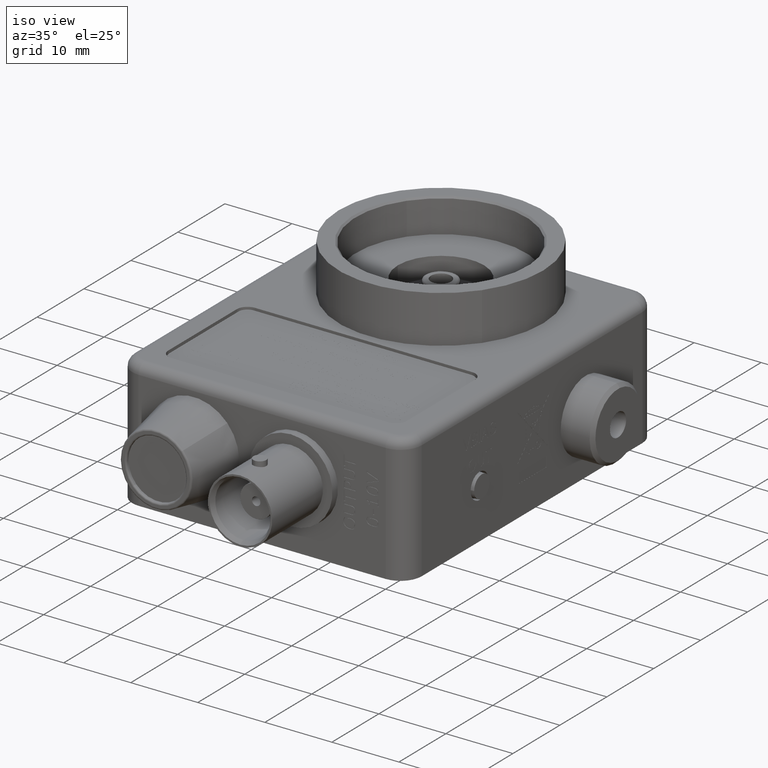
[diagram: clean part render]
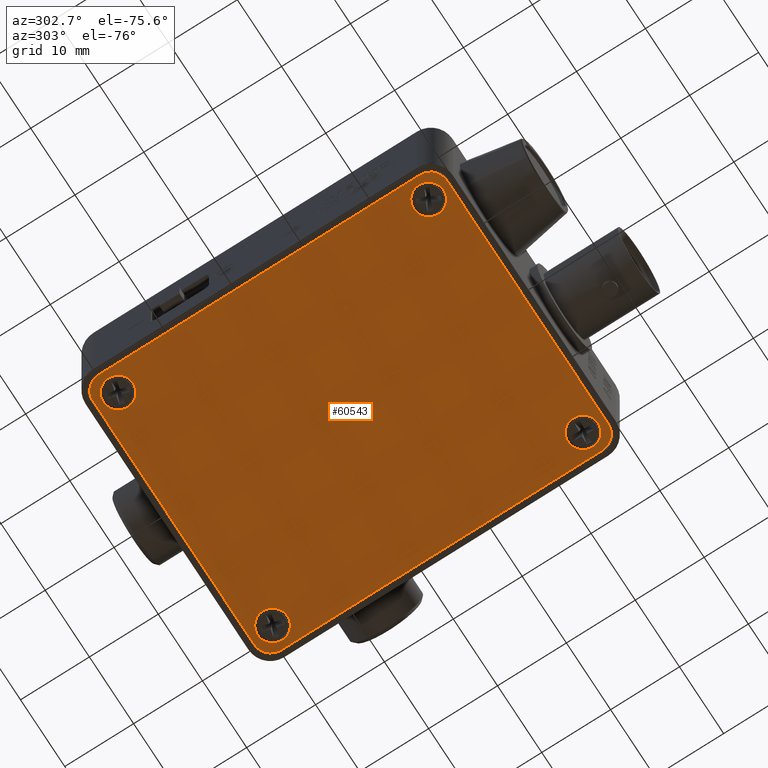
[diagram: tour spotlight — one face highlighted and labeled with its STEP entity id]
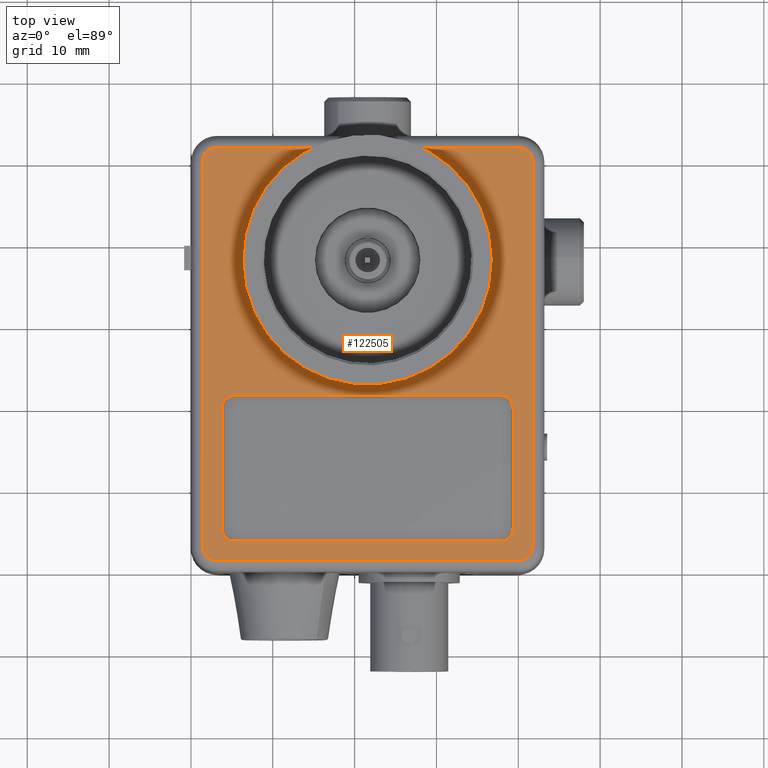
[diagram: tour spotlight — one face highlighted and labeled with its STEP entity id]
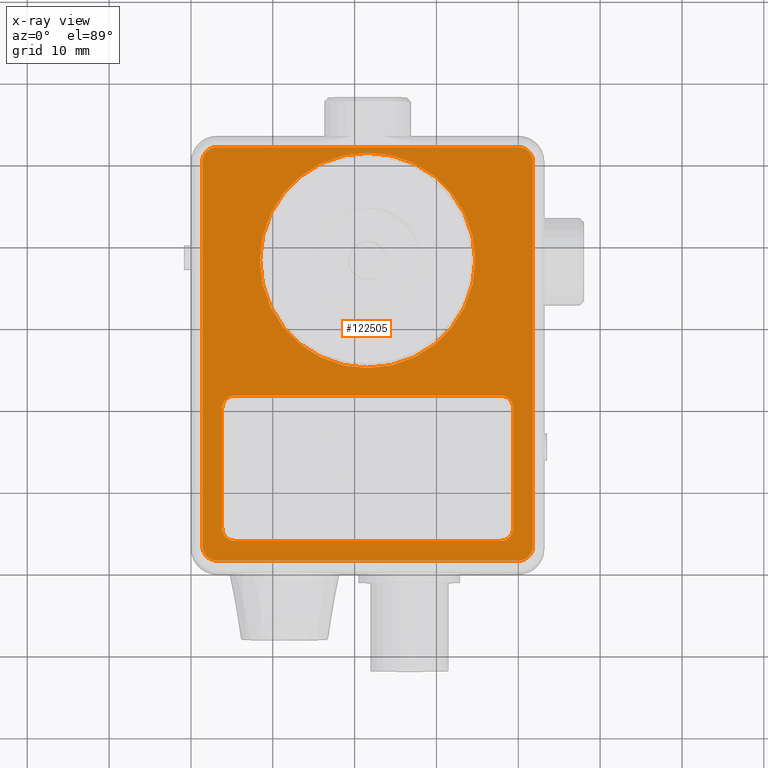
[diagram: x-ray of the same camera — body ghosted, this tour face saturated]
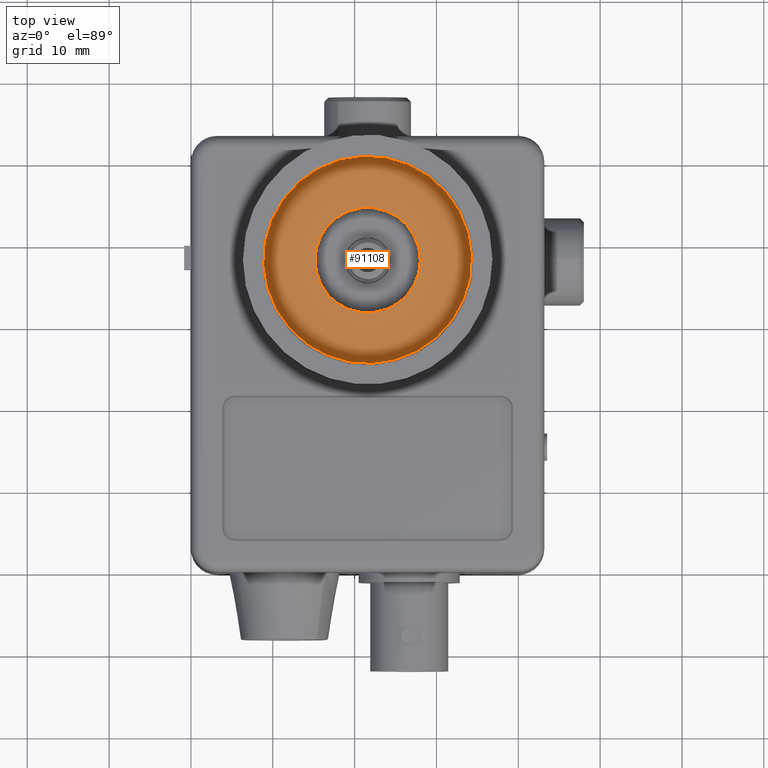
[diagram: tour spotlight — one face highlighted and labeled with its STEP entity id]
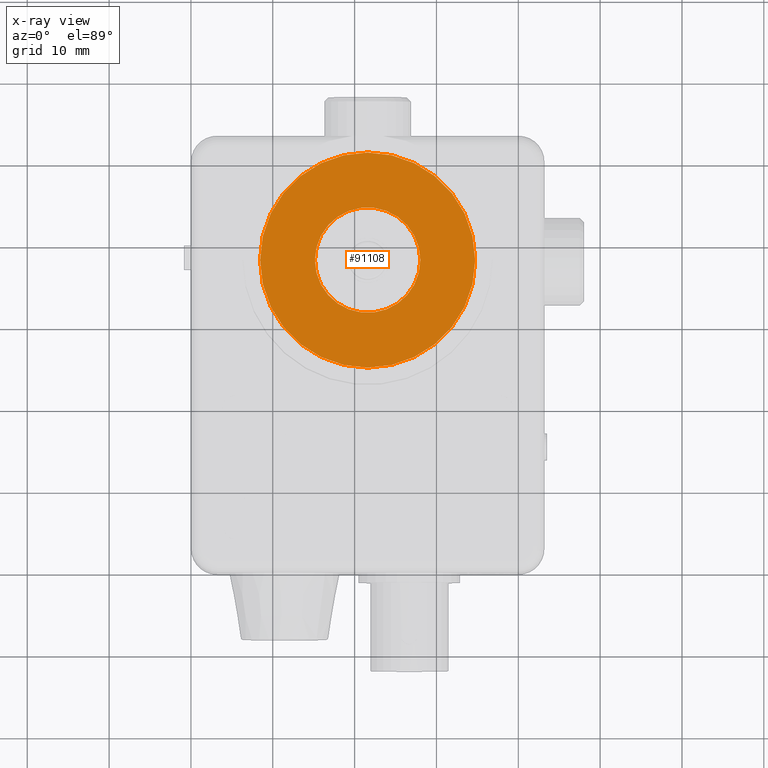
[diagram: x-ray of the same camera — body ghosted, this tour face saturated]
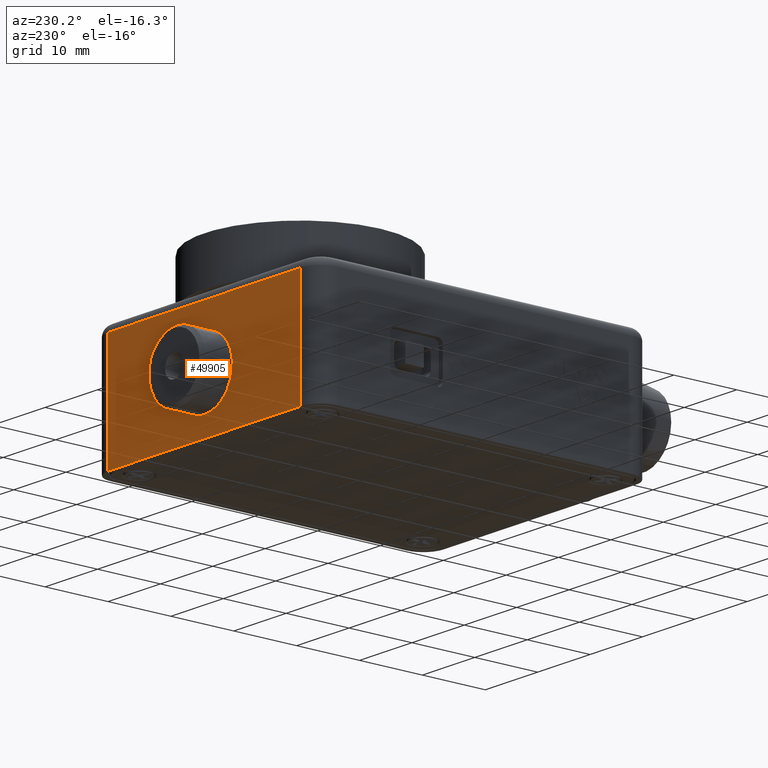
[diagram: tour spotlight — one face highlighted and labeled with its STEP entity id]
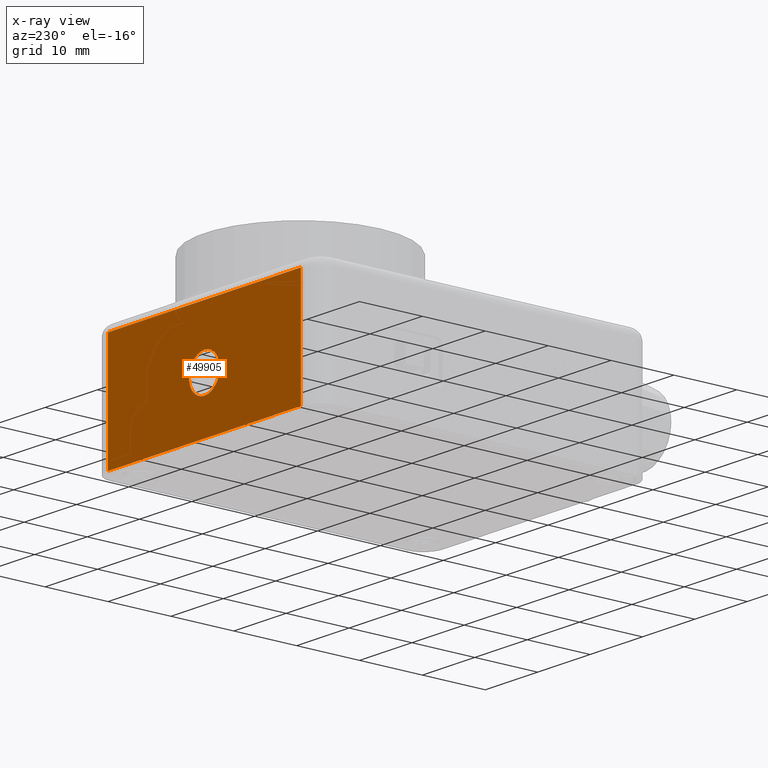
[diagram: x-ray of the same camera — body ghosted, this tour face saturated]
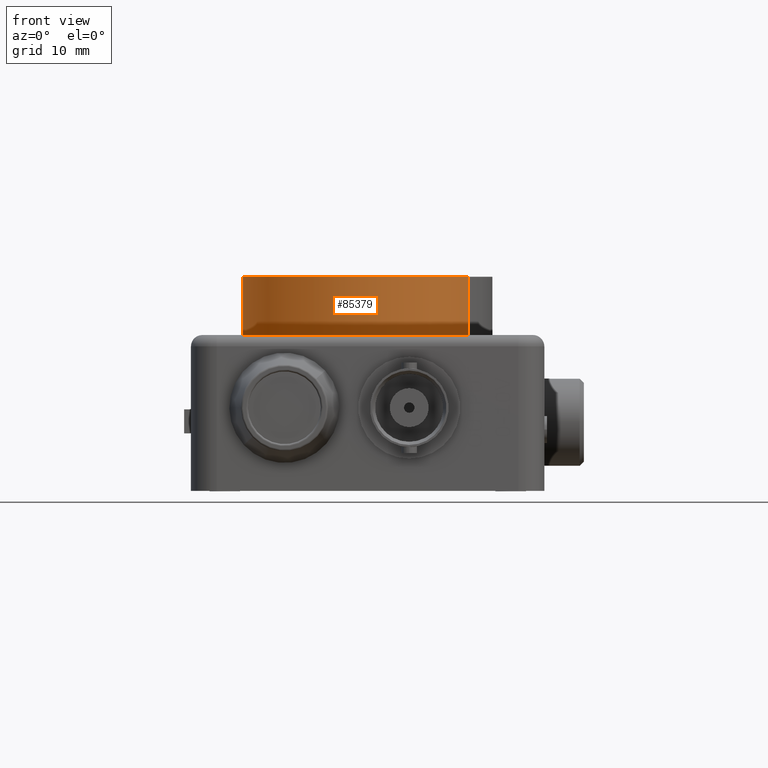
[diagram: tour spotlight — one face highlighted and labeled with its STEP entity id]
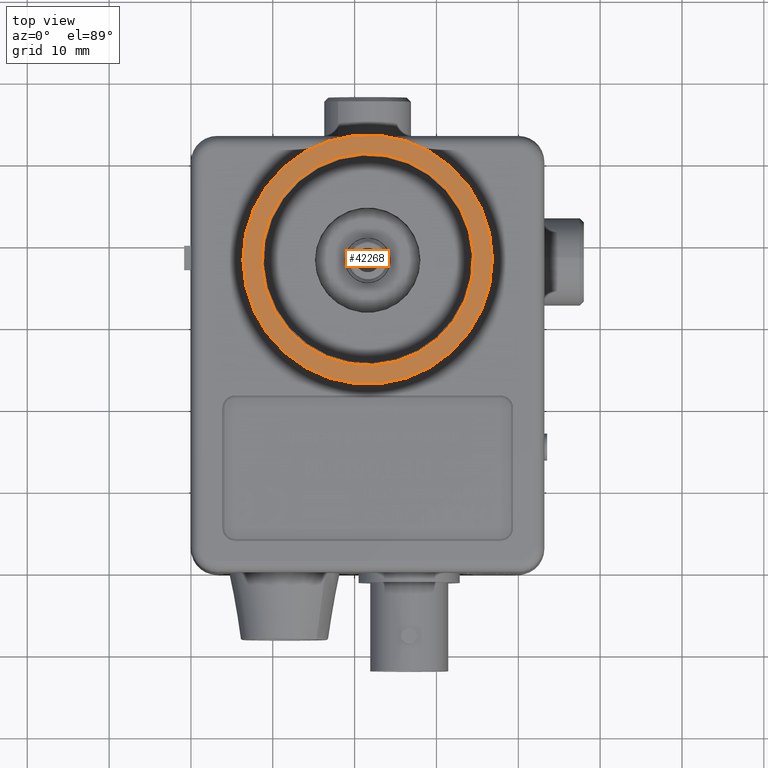
[diagram: tour spotlight — one face highlighted and labeled with its STEP entity id]
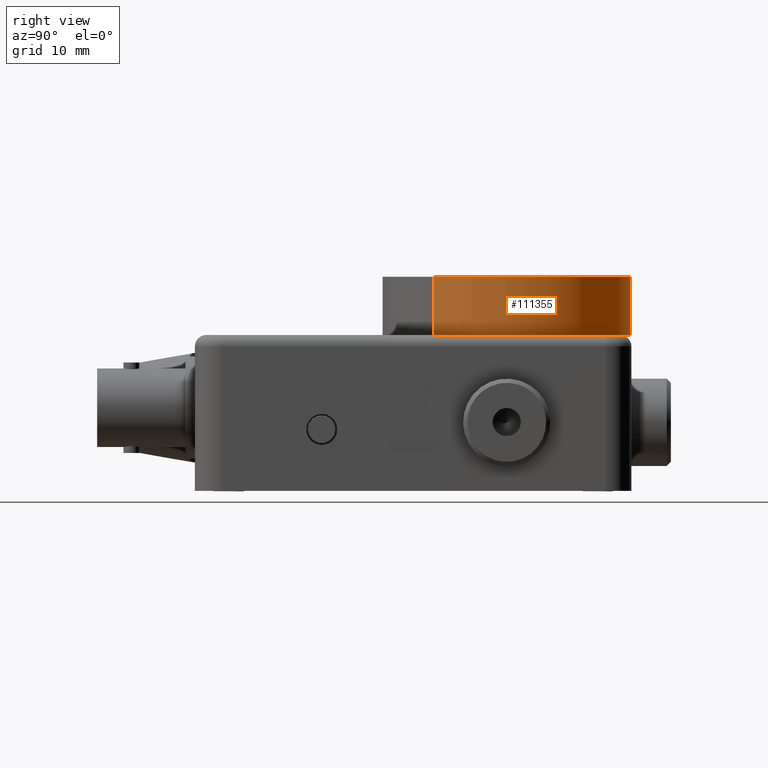
[diagram: tour spotlight — one face highlighted and labeled with its STEP entity id]
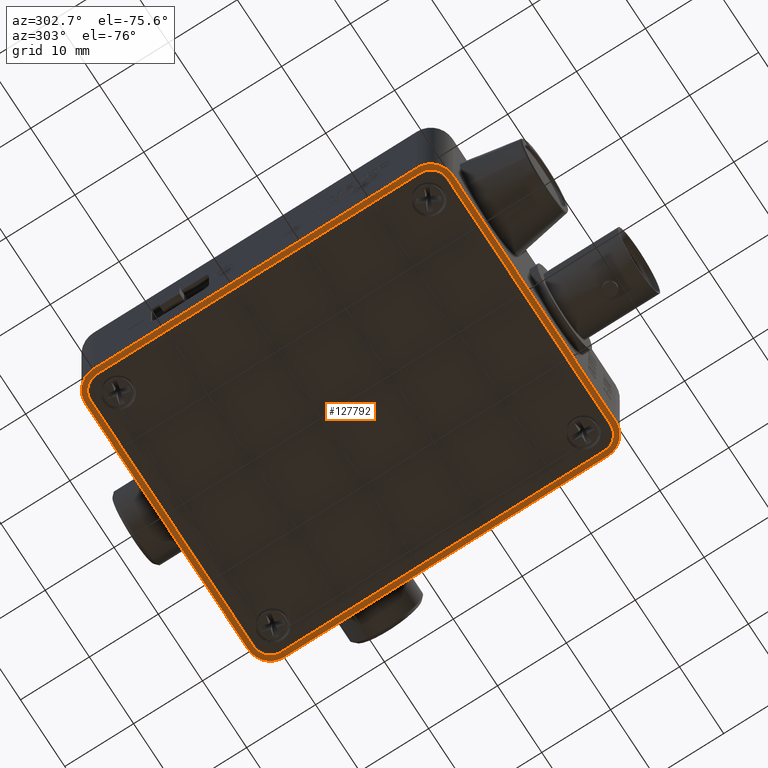
[diagram: tour spotlight — one face highlighted and labeled with its STEP entity id]
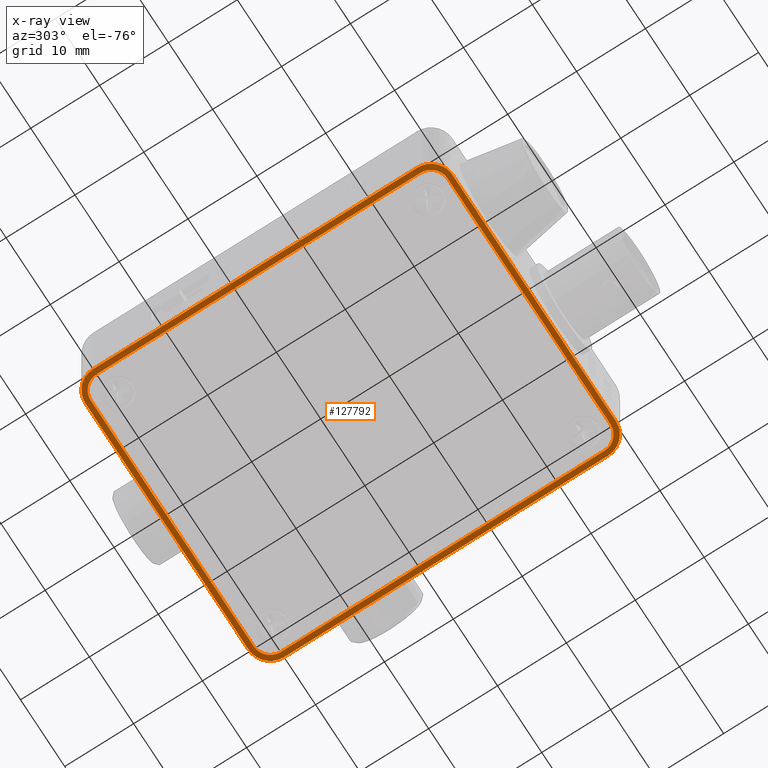
[diagram: x-ray of the same camera — body ghosted, this tour face saturated]
A machine part: a face-by-face anatomy tour. The part has 2159 B-rep faces; the first image is the clean iso view, then the 8 largest visible faces are spotlighted one at a time (largest first), each with its STEP entity span.

Face 1 — auxiliary view, entity #60543. In plain terms, the highlighted planar face has unit normal (-0, -0, 1).
Definition (entity closure, byte-faithful):
#712 = CARTESIAN_POINT ( 'NONE',  ( 1.451499999999999800, 0.1624999999999999500, -3.518016715013850800E-016 ) ) ;
#1580 = DIRECTION ( 'NONE',  ( 2.074008503664369100E-017, 1.206915742332253800E-016, -1.000000000000000000 ) ) ;
#2681 = VERTEX_POINT ( 'NONE', #29967 ) ;
#2888 = AXIS2_PLACEMENT_3D ( 'NONE', #111267, #50231, #121487 ) ;
#3166 = CARTESIAN_POINT ( 'NONE',  ( 0.03749999999999953400, 2.062499999999999600, -8.537024980200822600E-017 ) ) ;
#3962 = CARTESIAN_POINT ( 'NONE',  ( 1.451500000000000000, 1.937499999999999800, -1.383760469963645400E-016 ) ) ;
#4056 = EDGE_LOOP ( 'NONE', ( #114102, #80514 ) ) ;
#4899 = CARTESIAN_POINT ( 'NONE',  ( 0.1624999999999999800, 1.937499999999999800, -1.707404996040164500E-016 ) ) ;
#6873 = ORIENTED_EDGE ( 'NONE', *, *, #11023, .T. ) ;
#7372 = ORIENTED_EDGE ( 'NONE', *, *, #60469, .T. ) ;
#7792 = VERTEX_POINT ( 'NONE', #60275 ) ;
#8526 = ORIENTED_EDGE ( 'NONE', *, *, #109176, .F. ) ;
#9032 = CARTESIAN_POINT ( 'NONE',  ( 1.662499999999999600, 2.062500000000000000, -5.122214988120493500E-017 ) ) ;
#10306 = VERTEX_POINT ( 'NONE', #88200 ) ;
#11023 = EDGE_CURVE ( 'NONE', #125102, #91400, #96561, .T. ) ;
#11764 = FACE_OUTER_BOUND ( 'NONE', #58538, .T. ) ;
#13697 = CARTESIAN_POINT ( 'NONE',  ( 1.567499999999999700, 1.967500000000000000, -5.975917486140575200E-017 ) ) ;
#14571 = AXIS2_PLACEMENT_3D ( 'NONE', #45133, #116409, #55351 ) ;
#15133 = DIRECTION ( 'NONE',  ( 1.000000000000000000, 0.0000000000000000000, 2.074008503664379300E-017 ) ) ;
#16435 = CARTESIAN_POINT ( 'NONE',  ( 0.03749999999999980400, 0.1324999999999997600, -3.158699242674304400E-016 ) ) ;
#16809 = CARTESIAN_POINT ( 'NONE',  ( 1.662499999999999900, 0.1325000000000000300, -2.817218243466271300E-016 ) ) ;
#18834 = DIRECTION ( 'NONE',  ( 2.074008503664369100E-017, 1.206915742332253800E-016, -1.000000000000000000 ) ) ;
#19804 = EDGE_CURVE ( 'NONE', #74933, #38621, #129944, .T. ) ;
#20464 = CARTESIAN_POINT ( 'NONE',  ( 0.07650000000000001200, 1.937499999999999800, -1.725241469171678300E-016 ) ) ;
#23954 = DIRECTION ( 'NONE',  ( -1.000000000000000000, 0.0000000000000000000, -2.074008503664368800E-017 ) ) ;
#24118 = CARTESIAN_POINT ( 'NONE',  ( 0.1624999999999999800, 1.937499999999999800, -1.707404996040164500E-016 ) ) ;
#24521 = EDGE_CURVE ( 'NONE', #10306, #2681, #93439, .T. ) ;
#25282 = LINE ( 'NONE', #70670, #52423 ) ;
#25761 = LINE ( 'NONE', #9032, #80029 ) ;
#26008 = EDGE_CURVE ( 'NONE', #119391, #7792, #86317, .T. ) ;
#26650 = AXIS2_PLACEMENT_3D ( 'NONE', #92923, #31879, #103177 ) ;
#27378 = VECTOR ( 'NONE', #54423, 39.37007874015748100 ) ;
#28278 = CARTESIAN_POINT ( 'NONE',  ( 1.623499999999999900, 0.1624999999999999800, -3.482343768750823800E-016 ) ) ;
#29967 = CARTESIAN_POINT ( 'NONE',  ( 0.07650000000000012300, 0.1624999999999999500, -3.859497714221883500E-016 ) ) ;
#30086 = CIRCLE ( 'NONE', #14571, 0.09499999999999994600 ) ;
#31879 = DIRECTION ( 'NONE',  ( 2.074008503664369100E-017, 1.206915742332253800E-016, -1.000000000000000000 ) ) ;
#32384 = AXIS2_PLACEMENT_3D ( 'NONE', #4899, #76260, #15133 ) ;
#32708 = CIRCLE ( 'NONE', #100545, 0.08599999999999985400 ) ;
#33514 = CARTESIAN_POINT ( 'NONE',  ( 0.2484999999999999700, 1.937499999999999800, -1.689568522908650700E-016 ) ) ;
#34171 = CIRCLE ( 'NONE', #129827, 0.09499999999999998700 ) ;
#34353 = DIRECTION ( 'NONE',  ( 1.000000000000000000, 0.0000000000000000000, 2.074008503664379300E-017 ) ) ;
#34570 = CARTESIAN_POINT ( 'NONE',  ( 0.03749999999999953400, 2.062499999999999600, -8.537024980200822600E-017 ) ) ;
#35043 = AXIS2_PLACEMENT_3D ( 'NONE', #79910, #18834, #90184 ) ;
#35731 = CARTESIAN_POINT ( 'NONE',  ( 1.662499999999999600, 1.967500000000000000, -5.975917486140575200E-017 ) ) ;
#38621 = VERTEX_POINT ( 'NONE', #20464 ) ;
#38904 = FACE_BOUND ( 'NONE', #60769, .T. ) ;
#42623 = DIRECTION ( 'NONE',  ( 2.074008503664369100E-017, 1.206915742332253800E-016, -1.000000000000000000 ) ) ;
#43057 = PLANE ( 'NONE',  #79479 ) ;
#43485 = CIRCLE ( 'NONE', #2888, 0.08600000000000011800 ) ;
#44497 = CARTESIAN_POINT ( 'NONE',  ( 0.1324999999999997600, 0.1324999999999997600, -3.158699242674304400E-016 ) ) ;
#44840 = DIRECTION ( 'NONE',  ( -1.000000000000000000, -1.110223024625156500E-016, -2.074008503664370400E-017 ) ) ;
#45133 = CARTESIAN_POINT ( 'NONE',  ( 1.567499999999999900, 0.1325000000000000300, -2.817218243466271300E-016 ) ) ;
#46167 = VERTEX_POINT ( 'NONE', #712 ) ;
#46899 = ORIENTED_EDGE ( 'NONE', *, *, #96132, .T. ) ;
#47827 = EDGE_CURVE ( 'NONE', #91400, #49755, #30086, .T. ) ;
#49755 = VERTEX_POINT ( 'NONE', #57821 ) ;
#50231 = DIRECTION ( 'NONE',  ( 2.074008503664369100E-017, 1.206915742332253800E-016, -1.000000000000000000 ) ) ;
#51005 = EDGE_LOOP ( 'NONE', ( #96414, #119930 ) ) ;
#51405 = CARTESIAN_POINT ( 'NONE',  ( 0.1324999999999997600, 0.03749999999999980400, -3.329439742278321000E-016 ) ) ;
#51725 = AXIS2_PLACEMENT_3D ( 'NONE', #44497, #115802, #54738 ) ;
#52423 = VECTOR ( 'NONE', #131633, 39.37007874015748100 ) ;
#52756 = CARTESIAN_POINT ( 'NONE',  ( 1.537499999999999900, 1.937499999999999800, -1.365923996832131600E-016 ) ) ;
#52838 = DIRECTION ( 'NONE',  ( 1.110223024625156500E-016, -1.000000000000000000, -1.206915742332253800E-016 ) ) ;
#54423 = DIRECTION ( 'NONE',  ( -1.110223024625156500E-016, 1.000000000000000000, 1.206915742332253800E-016 ) ) ;
#54508 = LINE ( 'NONE', #3166, #27378 ) ;
#54738 = DIRECTION ( 'NONE',  ( -1.000000000000000000, -1.797268416884384000E-016, -2.074008503664367900E-017 ) ) ;
#55351 = DIRECTION ( 'NONE',  ( -1.000000000000000000, -1.797268416884384800E-016, -2.074008503664368800E-017 ) ) ;
#55924 = VERTEX_POINT ( 'NONE', #72555 ) ;
#57821 = CARTESIAN_POINT ( 'NONE',  ( 1.567499999999999900, 0.03750000000000007500, -2.987958743070287800E-016 ) ) ;
#58538 = EDGE_LOOP ( 'NONE', ( #78416, #71309, #6873, #82585, #106628, #80482, #46899, #7372 ) ) ;
#60275 = CARTESIAN_POINT ( 'NONE',  ( 1.623499999999999700, 1.937499999999999800, -1.348087523700618100E-016 ) ) ;
#60469 = EDGE_CURVE ( 'NONE', #114942, #55924, #34171, .T. ) ;
#60543 = ADVANCED_FACE ( 'NONE', ( #93143, #66047, #38904, #117025, #11764 ), #43057, .F. ) ;
#60769 = EDGE_LOOP ( 'NONE', ( #102526, #8526 ) ) ;
#60779 = AXIS2_PLACEMENT_3D ( 'NONE', #24118, #95426, #34353 ) ;
#61067 = CARTESIAN_POINT ( 'NONE',  ( 0.1624999999999999800, 0.1624999999999999800, -3.841661241090370200E-016 ) ) ;
#62687 = CARTESIAN_POINT ( 'NONE',  ( 0.1624999999999999800, 0.1624999999999999800, -3.841661241090370200E-016 ) ) ;
#63023 = DIRECTION ( 'NONE',  ( 1.000000000000000000, 0.0000000000000000000, 2.074008503664382100E-017 ) ) ;
#64101 = VERTEX_POINT ( 'NONE', #16435 ) ;
#64381 = EDGE_CURVE ( 'NONE', #106360, #64101, #120223, .T. ) ;
#66047 = FACE_BOUND ( 'NONE', #107411, .T. ) ;
#70670 = CARTESIAN_POINT ( 'NONE',  ( 1.662499999999999900, 0.03750000000000007500, -2.987958743070287800E-016 ) ) ;
#71309 = ORIENTED_EDGE ( 'NONE', *, *, #131439, .T. ) ;
#71388 = DIRECTION ( 'NONE',  ( 1.000000000000000000, 0.0000000000000000000, 2.074008503664346900E-017 ) ) ;
#72533 = CARTESIAN_POINT ( 'NONE',  ( 0.03749999999999953400, 1.967499999999999800, -9.390727478220904200E-017 ) ) ;
#72555 = CARTESIAN_POINT ( 'NONE',  ( 0.1324999999999994800, 2.062499999999999600, -8.537024980200822600E-017 ) ) ;
#73018 = DIRECTION ( 'NONE',  ( 1.000000000000000000, 0.0000000000000000000, 2.074008503664346900E-017 ) ) ;
#74933 = VERTEX_POINT ( 'NONE', #33514 ) ;
#76235 = AXIS2_PLACEMENT_3D ( 'NONE', #13697, #85035, #23954 ) ;
#76260 = DIRECTION ( 'NONE',  ( 2.074008503664369100E-017, 1.206915742332253800E-016, -1.000000000000000000 ) ) ;
#78416 = ORIENTED_EDGE ( 'NONE', *, *, #130752, .T. ) ;
#79297 = VERTEX_POINT ( 'NONE', #114178 ) ;
#79479 = AXIS2_PLACEMENT_3D ( 'NONE', #34570, #105891, #44840 ) ;
#79910 = CARTESIAN_POINT ( 'NONE',  ( 1.537499999999999900, 1.937499999999999800, -1.365923996832131600E-016 ) ) ;
#80029 = VECTOR ( 'NONE', #80349, 39.37007874015748100 ) ;
#80349 = DIRECTION ( 'NONE',  ( 1.000000000000000000, 1.110223024625156500E-016, 2.074008503664370400E-017 ) ) ;
#80482 = ORIENTED_EDGE ( 'NONE', *, *, #64381, .T. ) ;
#80514 = ORIENTED_EDGE ( 'NONE', *, *, #130940, .F. ) ;
#82585 = ORIENTED_EDGE ( 'NONE', *, *, #47827, .T. ) ;
#83843 = ORIENTED_EDGE ( 'NONE', *, *, #24521, .F. ) ;
#85035 = DIRECTION ( 'NONE',  ( 2.074008503664369100E-017, 1.206915742332253800E-016, -1.000000000000000000 ) ) ;
#86302 = ORIENTED_EDGE ( 'NONE', *, *, #127888, .F. ) ;
#86317 = CIRCLE ( 'NONE', #110958, 0.08599999999999985400 ) ;
#88200 = CARTESIAN_POINT ( 'NONE',  ( 0.2484999999999998300, 0.1624999999999999800, -3.823824767958856900E-016 ) ) ;
#89494 = CIRCLE ( 'NONE', #60779, 0.08599999999999997900 ) ;
#90184 = DIRECTION ( 'NONE',  ( 1.000000000000000000, 0.0000000000000000000, 2.074008503664382100E-017 ) ) ;
#91400 = VERTEX_POINT ( 'NONE', #16809 ) ;
#92923 = CARTESIAN_POINT ( 'NONE',  ( 1.537499999999999900, 0.1624999999999999800, -3.500180241882337100E-016 ) ) ;
#93143 = FACE_BOUND ( 'NONE', #4056, .T. ) ;
#93357 = VECTOR ( 'NONE', #52838, 39.37007874015748100 ) ;
#93439 = CIRCLE ( 'NONE', #128725, 0.08599999999999985400 ) ;
#95426 = DIRECTION ( 'NONE',  ( 2.074008503664369100E-017, 1.206915742332253800E-016, -1.000000000000000000 ) ) ;
#95625 = CIRCLE ( 'NONE', #76235, 0.09499999999999994600 ) ;
#96132 = EDGE_CURVE ( 'NONE', #64101, #114942, #54508, .T. ) ;
#96414 = ORIENTED_EDGE ( 'NONE', *, *, #101226, .F. ) ;
#96561 = LINE ( 'NONE', #104078, #93357 ) ;
#100545 = AXIS2_PLACEMENT_3D ( 'NONE', #62687, #1580, #73018 ) ;
#100647 = CIRCLE ( 'NONE', #35043, 0.08599999999999985400 ) ;
#101226 = EDGE_CURVE ( 'NONE', #7792, #119391, #100647, .T. ) ;
#102526 = ORIENTED_EDGE ( 'NONE', *, *, #118786, .F. ) ;
#103177 = DIRECTION ( 'NONE',  ( 1.000000000000000000, 0.0000000000000000000, 2.074008503664340500E-017 ) ) ;
#103674 = CARTESIAN_POINT ( 'NONE',  ( 0.1324999999999994800, 1.967499999999999800, -9.390727478220904200E-017 ) ) ;
#103679 = CIRCLE ( 'NONE', #26650, 0.08600000000000011800 ) ;
#104078 = CARTESIAN_POINT ( 'NONE',  ( 1.662499999999999600, 2.062500000000000000, -5.122214988120493500E-017 ) ) ;
#105891 = DIRECTION ( 'NONE',  ( -2.074008503664369100E-017, -1.206915742332253800E-016, 1.000000000000000000 ) ) ;
#106360 = VERTEX_POINT ( 'NONE', #51405 ) ;
#106628 = ORIENTED_EDGE ( 'NONE', *, *, #126704, .T. ) ;
#107411 = EDGE_LOOP ( 'NONE', ( #83843, #86302 ) ) ;
#109176 = EDGE_CURVE ( 'NONE', #46167, #129629, #103679, .T. ) ;
#110958 = AXIS2_PLACEMENT_3D ( 'NONE', #52756, #124059, #63023 ) ;
#111267 = CARTESIAN_POINT ( 'NONE',  ( 1.537499999999999900, 0.1624999999999999800, -3.500180241882337100E-016 ) ) ;
#113944 = DIRECTION ( 'NONE',  ( -1.000000000000000000, 0.0000000000000000000, -2.074008503664367900E-017 ) ) ;
#114102 = ORIENTED_EDGE ( 'NONE', *, *, #19804, .F. ) ;
#114178 = CARTESIAN_POINT ( 'NONE',  ( 1.567499999999999700, 2.062500000000000000, -5.122214988120493500E-017 ) ) ;
#114942 = VERTEX_POINT ( 'NONE', #72533 ) ;
#115802 = DIRECTION ( 'NONE',  ( 2.074008503664369100E-017, 1.206915742332253800E-016, -1.000000000000000000 ) ) ;
#116409 = DIRECTION ( 'NONE',  ( 2.074008503664369100E-017, 1.206915742332253800E-016, -1.000000000000000000 ) ) ;
#117025 = FACE_BOUND ( 'NONE', #51005, .T. ) ;
#118786 = EDGE_CURVE ( 'NONE', #129629, #46167, #43485, .T. ) ;
#119391 = VERTEX_POINT ( 'NONE', #3962 ) ;
#119930 = ORIENTED_EDGE ( 'NONE', *, *, #26008, .F. ) ;
#120223 = CIRCLE ( 'NONE', #51725, 0.09499999999999998700 ) ;
#121487 = DIRECTION ( 'NONE',  ( 1.000000000000000000, 0.0000000000000000000, 2.074008503664340500E-017 ) ) ;
#124059 = DIRECTION ( 'NONE',  ( 2.074008503664369100E-017, 1.206915742332253800E-016, -1.000000000000000000 ) ) ;
#125102 = VERTEX_POINT ( 'NONE', #35731 ) ;
#126704 = EDGE_CURVE ( 'NONE', #49755, #106360, #25282, .T. ) ;
#127888 = EDGE_CURVE ( 'NONE', #2681, #10306, #32708, .T. ) ;
#128725 = AXIS2_PLACEMENT_3D ( 'NONE', #61067, #132307, #71388 ) ;
#129629 = VERTEX_POINT ( 'NONE', #28278 ) ;
#129827 = AXIS2_PLACEMENT_3D ( 'NONE', #103674, #42623, #113944 ) ;
#129944 = CIRCLE ( 'NONE', #32384, 0.08599999999999997900 ) ;
#130752 = EDGE_CURVE ( 'NONE', #55924, #79297, #25761, .T. ) ;
#130940 = EDGE_CURVE ( 'NONE', #38621, #74933, #89494, .T. ) ;
#131439 = EDGE_CURVE ( 'NONE', #79297, #125102, #95625, .T. ) ;
#131633 = DIRECTION ( 'NONE',  ( -1.000000000000000000, -1.110223024625156500E-016, -2.074008503664370400E-017 ) ) ;
#132307 = DIRECTION ( 'NONE',  ( 2.074008503664369100E-017, 1.206915742332253800E-016, -1.000000000000000000 ) ) ;

Face 2 — top view, entity #122505. An x-ray twin of the same camera follows (body ghosted, this face saturated) — the face is partly hidden behind the body. In plain terms, the highlighted planar face has unit normal (0, 0, -1).
Definition (entity closure, byte-faithful):
#430 = EDGE_LOOP ( 'NONE', ( #16849, #94442, #17096, #6791, #81090, #93960, #19947, #109097 ) ) ;
#3175 = VERTEX_POINT ( 'NONE', #70912 ) ;
#3303 = DIRECTION ( 'NONE',  ( 1.000000000000000000, 0.0000000000000000000, 0.0000000000000000000 ) ) ;
#4020 = DIRECTION ( 'NONE',  ( 0.0000000000000000000, 0.0000000000000000000, -1.000000000000000000 ) ) ;
#4265 = CARTESIAN_POINT ( 'NONE',  ( 0.2124999999999999900, 0.7875000000000000900, 0.7500000000000001100 ) ) ;
#5574 = AXIS2_PLACEMENT_3D ( 'NONE', #84096, #23015, #94306 ) ;
#5735 = LINE ( 'NONE', #69530, #87120 ) ;
#6666 = CIRCLE ( 'NONE', #21596, 0.06250000000000001400 ) ;
#6791 = ORIENTED_EDGE ( 'NONE', *, *, #75926, .F. ) ;
#8865 = CARTESIAN_POINT ( 'NONE',  ( 1.645000000000000000, 0.1249999999999999900, 0.7500000000000001100 ) ) ;
#9186 = CARTESIAN_POINT ( 'NONE',  ( 1.644999999999999800, 1.975000000000000100, 0.7500000000000001100 ) ) ;
#9626 = DIRECTION ( 'NONE',  ( -2.969399993113330200E-017, -1.000000000000000000, -0.0000000000000000000 ) ) ;
#10764 = CIRCLE ( 'NONE', #5574, 0.06999999999999999300 ) ;
#11358 = CARTESIAN_POINT ( 'NONE',  ( 1.644999999999999800, 2.100000000000000100, 0.7500000000000001100 ) ) ;
#12232 = DIRECTION ( 'NONE',  ( 0.0000000000000000000, 0.0000000000000000000, 1.000000000000000000 ) ) ;
#13071 = AXIS2_PLACEMENT_3D ( 'NONE', #4265, #75655, #14507 ) ;
#13629 = VERTEX_POINT ( 'NONE', #35243 ) ;
#13835 = PLANE ( 'NONE',  #61526 ) ;
#14406 = VERTEX_POINT ( 'NONE', #9186 ) ;
#14507 = DIRECTION ( 'NONE',  ( 1.000000000000000000, 0.0000000000000000000, 0.0000000000000000000 ) ) ;
#16174 = ORIENTED_EDGE ( 'NONE', *, *, #117974, .F. ) ;
#16849 = ORIENTED_EDGE ( 'NONE', *, *, #99510, .F. ) ;
#17096 = ORIENTED_EDGE ( 'NONE', *, *, #78002, .F. ) ;
#18163 = CARTESIAN_POINT ( 'NONE',  ( 1.574999999999999700, 1.975000000000000100, 0.7500000000000001100 ) ) ;
#19372 = CARTESIAN_POINT ( 'NONE',  ( 0.05499999999999999300, 2.100000000000000100, 0.7500000000000001100 ) ) ;
#19755 = AXIS2_PLACEMENT_3D ( 'NONE', #18163, #89486, #28424 ) ;
#19947 = ORIENTED_EDGE ( 'NONE', *, *, #123541, .F. ) ;
#21596 = AXIS2_PLACEMENT_3D ( 'NONE', #73411, #12232, #83583 ) ;
#22880 = CARTESIAN_POINT ( 'NONE',  ( 1.487499999999999600, 0.8499999999999999800, 0.7500000000000001100 ) ) ;
#22933 = CARTESIAN_POINT ( 'NONE',  ( 0.1249999999999999900, 2.044999999999999900, 0.7500000000000001100 ) ) ;
#23015 = DIRECTION ( 'NONE',  ( -0.0000000000000000000, -0.0000000000000000000, 1.000000000000000000 ) ) ;
#24007 = CARTESIAN_POINT ( 'NONE',  ( 0.1499999999999999700, 0.2125000000000001900, 0.7500000000000001100 ) ) ;
#24397 = DIRECTION ( 'NONE',  ( 0.0000000000000000000, 0.0000000000000000000, 1.000000000000000000 ) ) ;
#26410 = ORIENTED_EDGE ( 'NONE', *, *, #115722, .F. ) ;
#26998 = EDGE_CURVE ( 'NONE', #124293, #62391, #75109, .T. ) ;
#28424 = DIRECTION ( 'NONE',  ( -1.000000000000000000, 0.0000000000000000000, 0.0000000000000000000 ) ) ;
#28565 = CIRCLE ( 'NONE', #117361, 0.06999999999999999300 ) ;
#29594 = CARTESIAN_POINT ( 'NONE',  ( 0.0000000000000000000, 2.044999999999999900, 0.7500000000000001100 ) ) ;
#33530 = CARTESIAN_POINT ( 'NONE',  ( 1.574999999999999700, 2.045000000000000400, 0.7500000000000001100 ) ) ;
#34368 = CARTESIAN_POINT ( 'NONE',  ( 1.367500000000000200, 1.500000000000000200, 0.7500000000000001100 ) ) ;
#34405 = ORIENTED_EDGE ( 'NONE', *, *, #97390, .T. ) ;
#35243 = CARTESIAN_POINT ( 'NONE',  ( 0.05499999999999999300, 1.975000000000000100, 0.7500000000000001100 ) ) ;
#36104 = CIRCLE ( 'NONE', #84535, 0.5174999999999999600 ) ;
#36679 = EDGE_CURVE ( 'NONE', #124160, #3175, #28565, .T. ) ;
#37389 = AXIS2_PLACEMENT_3D ( 'NONE', #125458, #64386, #3303 ) ;
#37508 = VECTOR ( 'NONE', #95548, 39.37007874015748100 ) ;
#38524 = ORIENTED_EDGE ( 'NONE', *, *, #42437, .T. ) ;
#39342 = VERTEX_POINT ( 'NONE', #57828 ) ;
#40328 = VECTOR ( 'NONE', #9626, 39.37007874015748100 ) ;
#40734 = CARTESIAN_POINT ( 'NONE',  ( 0.2124999999999999900, 0.8499999999999999800, 0.7500000000000001100 ) ) ;
#42119 = DIRECTION ( 'NONE',  ( 0.0000000000000000000, 1.000000000000000000, 0.0000000000000000000 ) ) ;
#42437 = EDGE_CURVE ( 'NONE', #79493, #14406, #53406, .T. ) ;
#42681 = EDGE_CURVE ( 'NONE', #61038, #64890, #75622, .T. ) ;
#44210 = CARTESIAN_POINT ( 'NONE',  ( 0.8499999999999999800, 1.500000000000000200, 0.7500000000000001100 ) ) ;
#45923 = CARTESIAN_POINT ( 'NONE',  ( 1.575000000000000000, 0.05500000000000009700, 0.7500000000000001100 ) ) ;
#46382 = EDGE_CURVE ( 'NONE', #124148, #79493, #72992, .T. ) ;
#48215 = VERTEX_POINT ( 'NONE', #123419 ) ;
#49904 = LINE ( 'NONE', #19372, #73864 ) ;
#49933 = FACE_BOUND ( 'NONE', #112298, .T. ) ;
#50149 = CIRCLE ( 'NONE', #13071, 0.06249999999999991700 ) ;
#50264 = VECTOR ( 'NONE', #42119, 39.37007874015748100 ) ;
#51641 = VECTOR ( 'NONE', #111169, 39.37007874015748100 ) ;
#53065 = DIRECTION ( 'NONE',  ( -0.0000000000000000000, -0.0000000000000000000, 1.000000000000000000 ) ) ;
#53406 = LINE ( 'NONE', #11358, #50264 ) ;
#54455 = DIRECTION ( 'NONE',  ( -1.000000000000000000, 0.0000000000000000000, 0.0000000000000000000 ) ) ;
#55860 = VECTOR ( 'NONE', #99279, 39.37007874015748100 ) ;
#56794 = CARTESIAN_POINT ( 'NONE',  ( 1.575000000000000000, 0.1249999999999999900, 0.7500000000000001100 ) ) ;
#57453 = DIRECTION ( 'NONE',  ( -0.0000000000000000000, -0.0000000000000000000, 1.000000000000000000 ) ) ;
#57828 = CARTESIAN_POINT ( 'NONE',  ( 1.487499999999999800, 0.1500000000000001900, 0.7500000000000001100 ) ) ;
#59308 = EDGE_CURVE ( 'NONE', #13629, #124160, #49904, .T. ) ;
#59370 = VERTEX_POINT ( 'NONE', #40734 ) ;
#60392 = DIRECTION ( 'NONE',  ( 0.0000000000000000000, -1.000000000000000000, 0.0000000000000000000 ) ) ;
#61038 = VERTEX_POINT ( 'NONE', #33530 ) ;
#61526 = AXIS2_PLACEMENT_3D ( 'NONE', #65104, #4020, #75415 ) ;
#62391 = VERTEX_POINT ( 'NONE', #22880 ) ;
#63609 = VECTOR ( 'NONE', #95060, 39.37007874015748100 ) ;
#64097 = AXIS2_PLACEMENT_3D ( 'NONE', #85468, #24397, #95692 ) ;
#64386 = DIRECTION ( 'NONE',  ( 0.0000000000000000000, 0.0000000000000000000, 1.000000000000000000 ) ) ;
#64890 = VERTEX_POINT ( 'NONE', #22933 ) ;
#65104 = CARTESIAN_POINT ( 'NONE',  ( 0.0000000000000000000, 2.100000000000000100, 0.7500000000000001100 ) ) ;
#65475 = CIRCLE ( 'NONE', #70325, 0.5174999999999999600 ) ;
#66614 = EDGE_LOOP ( 'NONE', ( #111671, #34405, #71163, #99313, #121826, #90925, #38524, #73484 ) ) ;
#67062 = DIRECTION ( 'NONE',  ( -1.000000000000000000, 0.0000000000000000000, 0.0000000000000000000 ) ) ;
#69530 = CARTESIAN_POINT ( 'NONE',  ( 0.2124999999999999900, 0.8499999999999999800, 0.7500000000000001100 ) ) ;
#69533 = CARTESIAN_POINT ( 'NONE',  ( 1.549999999999999600, 0.7875000000000000900, 0.7500000000000001100 ) ) ;
#70325 = AXIS2_PLACEMENT_3D ( 'NONE', #44210, #115512, #54455 ) ;
#70762 = CARTESIAN_POINT ( 'NONE',  ( 0.1499999999999999700, 0.2125000000000001900, 0.7500000000000001100 ) ) ;
#70912 = CARTESIAN_POINT ( 'NONE',  ( 0.1249999999999999900, 0.05499999999999998600, 0.7500000000000001100 ) ) ;
#71163 = ORIENTED_EDGE ( 'NONE', *, *, #59308, .T. ) ;
#72033 = EDGE_CURVE ( 'NONE', #62391, #59370, #5735, .T. ) ;
#72992 = CIRCLE ( 'NONE', #116862, 0.07000000000000007600 ) ;
#73411 = CARTESIAN_POINT ( 'NONE',  ( 0.2124999999999999900, 0.2125000000000001900, 0.7500000000000001100 ) ) ;
#73484 = ORIENTED_EDGE ( 'NONE', *, *, #74336, .T. ) ;
#73864 = VECTOR ( 'NONE', #60392, 39.37007874015748100 ) ;
#74336 = EDGE_CURVE ( 'NONE', #14406, #61038, #116337, .T. ) ;
#75109 = CIRCLE ( 'NONE', #64097, 0.06249999999999995100 ) ;
#75415 = DIRECTION ( 'NONE',  ( -1.000000000000000000, 0.0000000000000000000, -0.0000000000000000000 ) ) ;
#75622 = LINE ( 'NONE', #29594, #51641 ) ;
#75655 = DIRECTION ( 'NONE',  ( 0.0000000000000000000, 0.0000000000000000000, 1.000000000000000000 ) ) ;
#75926 = EDGE_CURVE ( 'NONE', #59370, #48215, #50149, .T. ) ;
#78002 = EDGE_CURVE ( 'NONE', #48215, #120933, #118469, .T. ) ;
#79293 = DIRECTION ( 'NONE',  ( -1.000000000000000000, -0.0000000000000000000, -0.0000000000000000000 ) ) ;
#79493 = VERTEX_POINT ( 'NONE', #8865 ) ;
#80839 = VERTEX_POINT ( 'NONE', #104197 ) ;
#81090 = ORIENTED_EDGE ( 'NONE', *, *, #72033, .F. ) ;
#81422 = VERTEX_POINT ( 'NONE', #95555 ) ;
#82637 = EDGE_CURVE ( 'NONE', #3175, #124148, #82986, .T. ) ;
#82986 = LINE ( 'NONE', #89022, #55860 ) ;
#83583 = DIRECTION ( 'NONE',  ( -1.000000000000000000, 0.0000000000000000000, 0.0000000000000000000 ) ) ;
#84096 = CARTESIAN_POINT ( 'NONE',  ( 0.1249999999999999900, 1.975000000000000100, 0.7500000000000001100 ) ) ;
#84535 = AXIS2_PLACEMENT_3D ( 'NONE', #118525, #57453, #128809 ) ;
#85468 = CARTESIAN_POINT ( 'NONE',  ( 1.487499999999999600, 0.7875000000000000900, 0.7500000000000001100 ) ) ;
#87120 = VECTOR ( 'NONE', #79293, 39.37007874015748100 ) ;
#89022 = CARTESIAN_POINT ( 'NONE',  ( 0.0000000000000000000, 0.05500000000000009700, 0.7500000000000001100 ) ) ;
#89486 = DIRECTION ( 'NONE',  ( -0.0000000000000000000, -0.0000000000000000000, 1.000000000000000000 ) ) ;
#90925 = ORIENTED_EDGE ( 'NONE', *, *, #46382, .T. ) ;
#92727 = VERTEX_POINT ( 'NONE', #34368 ) ;
#93960 = ORIENTED_EDGE ( 'NONE', *, *, #26998, .F. ) ;
#94306 = DIRECTION ( 'NONE',  ( -1.000000000000000000, 0.0000000000000000000, 0.0000000000000000000 ) ) ;
#94442 = ORIENTED_EDGE ( 'NONE', *, *, #95556, .F. ) ;
#95060 = DIRECTION ( 'NONE',  ( -4.751039988981328300E-016, 1.000000000000000000, 0.0000000000000000000 ) ) ;
#95548 = DIRECTION ( 'NONE',  ( 1.000000000000000000, -0.0000000000000000000, -0.0000000000000000000 ) ) ;
#95555 = CARTESIAN_POINT ( 'NONE',  ( 0.2124999999999999900, 0.1500000000000003000, 0.7500000000000001100 ) ) ;
#95556 = EDGE_CURVE ( 'NONE', #120933, #81422, #6666, .T. ) ;
#95692 = DIRECTION ( 'NONE',  ( -1.000000000000000000, 0.0000000000000000000, 0.0000000000000000000 ) ) ;
#95972 = CARTESIAN_POINT ( 'NONE',  ( 1.487499999999999800, 0.1500000000000001900, 0.7500000000000001100 ) ) ;
#97390 = EDGE_CURVE ( 'NONE', #64890, #13629, #10764, .T. ) ;
#99279 = DIRECTION ( 'NONE',  ( 1.000000000000000000, -0.0000000000000000000, 0.0000000000000000000 ) ) ;
#99313 = ORIENTED_EDGE ( 'NONE', *, *, #36679, .T. ) ;
#99510 = EDGE_CURVE ( 'NONE', #81422, #39342, #115694, .T. ) ;
#100935 = FACE_OUTER_BOUND ( 'NONE', #66614, .T. ) ;
#104095 = FACE_BOUND ( 'NONE', #430, .T. ) ;
#104197 = CARTESIAN_POINT ( 'NONE',  ( 1.549999999999999800, 0.2125000000000001900, 0.7500000000000001100 ) ) ;
#105968 = EDGE_CURVE ( 'NONE', #39342, #80839, #106131, .T. ) ;
#106131 = CIRCLE ( 'NONE', #37389, 0.06249999999999995100 ) ;
#109097 = ORIENTED_EDGE ( 'NONE', *, *, #105968, .F. ) ;
#111169 = DIRECTION ( 'NONE',  ( -1.000000000000000000, 0.0000000000000000000, 0.0000000000000000000 ) ) ;
#111671 = ORIENTED_EDGE ( 'NONE', *, *, #42681, .T. ) ;
#112298 = EDGE_LOOP ( 'NONE', ( #26410, #16174 ) ) ;
#114137 = CARTESIAN_POINT ( 'NONE',  ( 0.1249999999999999900, 0.1249999999999999900, 0.7500000000000001100 ) ) ;
#114707 = CARTESIAN_POINT ( 'NONE',  ( 1.549999999999999800, 0.2125000000000001900, 0.7500000000000001100 ) ) ;
#115512 = DIRECTION ( 'NONE',  ( -0.0000000000000000000, -0.0000000000000000000, 1.000000000000000000 ) ) ;
#115694 = LINE ( 'NONE', #95972, #37508 ) ;
#115722 = EDGE_CURVE ( 'NONE', #119299, #92727, #36104, .T. ) ;
#116337 = CIRCLE ( 'NONE', #19755, 0.07000000000000007600 ) ;
#116862 = AXIS2_PLACEMENT_3D ( 'NONE', #56794, #128138, #67062 ) ;
#117361 = AXIS2_PLACEMENT_3D ( 'NONE', #114137, #53065, #124371 ) ;
#117765 = LINE ( 'NONE', #114707, #63609 ) ;
#117974 = EDGE_CURVE ( 'NONE', #92727, #119299, #65475, .T. ) ;
#118469 = LINE ( 'NONE', #70762, #40328 ) ;
#118525 = CARTESIAN_POINT ( 'NONE',  ( 0.8499999999999999800, 1.500000000000000200, 0.7500000000000001100 ) ) ;
#119299 = VERTEX_POINT ( 'NONE', #124318 ) ;
#120933 = VERTEX_POINT ( 'NONE', #24007 ) ;
#121826 = ORIENTED_EDGE ( 'NONE', *, *, #82637, .T. ) ;
#122505 = ADVANCED_FACE ( 'NONE', ( #100935, #104095, #49933 ), #13835, .F. ) ;
#123419 = CARTESIAN_POINT ( 'NONE',  ( 0.1500000000000000800, 0.7875000000000000900, 0.7500000000000001100 ) ) ;
#123541 = EDGE_CURVE ( 'NONE', #80839, #124293, #117765, .T. ) ;
#124148 = VERTEX_POINT ( 'NONE', #45923 ) ;
#124160 = VERTEX_POINT ( 'NONE', #127465 ) ;
#124293 = VERTEX_POINT ( 'NONE', #69533 ) ;
#124318 = CARTESIAN_POINT ( 'NONE',  ( 0.3324999999999999600, 1.500000000000000200, 0.7500000000000001100 ) ) ;
#124371 = DIRECTION ( 'NONE',  ( -1.000000000000000000, 0.0000000000000000000, 0.0000000000000000000 ) ) ;
#125458 = CARTESIAN_POINT ( 'NONE',  ( 1.487499999999999800, 0.2125000000000001900, 0.7500000000000001100 ) ) ;
#127465 = CARTESIAN_POINT ( 'NONE',  ( 0.05499999999999999300, 0.1249999999999999900, 0.7500000000000001100 ) ) ;
#128138 = DIRECTION ( 'NONE',  ( -0.0000000000000000000, -0.0000000000000000000, 1.000000000000000000 ) ) ;
#128809 = DIRECTION ( 'NONE',  ( -1.000000000000000000, 0.0000000000000000000, 0.0000000000000000000 ) ) ;

Face 3 — top view, entity #91108. An x-ray twin of the same camera follows (body ghosted, this face saturated) — the face is partly hidden behind the body. In plain terms, the highlighted planar face has unit normal (0, 0, 1).
Definition (entity closure, byte-faithful):
#1326 = CIRCLE ( 'NONE', #99037, 0.2534999999999998900 ) ;
#1406 = DIRECTION ( 'NONE',  ( 1.000000000000000000, 0.0000000000000000000, 0.0000000000000000000 ) ) ;
#5053 = EDGE_LOOP ( 'NONE', ( #123473, #46413 ) ) ;
#13873 = CIRCLE ( 'NONE', #20494, 0.2534999999999998900 ) ;
#20494 = AXIS2_PLACEMENT_3D ( 'NONE', #29873, #101189, #40083 ) ;
#21800 = DIRECTION ( 'NONE',  ( 0.0000000000000000000, 0.0000000000000000000, 1.000000000000000000 ) ) ;
#22718 = FACE_BOUND ( 'NONE', #5053, .T. ) ;
#28688 = CARTESIAN_POINT ( 'NONE',  ( 0.8499999999999999800, 1.500000000000000200, 0.8300000000000000700 ) ) ;
#29873 = CARTESIAN_POINT ( 'NONE',  ( 0.8499999999999999800, 1.500000000000000200, 0.8300000000000000700 ) ) ;
#38677 = ORIENTED_EDGE ( 'NONE', *, *, #113535, .T. ) ;
#38920 = DIRECTION ( 'NONE',  ( 1.000000000000000000, 0.0000000000000000000, 0.0000000000000000000 ) ) ;
#40083 = DIRECTION ( 'NONE',  ( 1.000000000000000000, 0.0000000000000000000, 0.0000000000000000000 ) ) ;
#42721 = CARTESIAN_POINT ( 'NONE',  ( 0.3324999999999999600, 1.500000000000000200, 0.8300000000000000700 ) ) ;
#44215 = CIRCLE ( 'NONE', #55240, 0.5175000000000001800 ) ;
#46413 = ORIENTED_EDGE ( 'NONE', *, *, #86773, .F. ) ;
#46693 = FACE_OUTER_BOUND ( 'NONE', #75928, .T. ) ;
#47090 = CARTESIAN_POINT ( 'NONE',  ( 1.103499999999999900, 1.500000000000000200, 0.8300000000000000700 ) ) ;
#47247 = VERTEX_POINT ( 'NONE', #42721 ) ;
#53444 = EDGE_CURVE ( 'NONE', #128047, #93263, #13873, .T. ) ;
#55240 = AXIS2_PLACEMENT_3D ( 'NONE', #28688, #100031, #38920 ) ;
#56076 = DIRECTION ( 'NONE',  ( 0.0000000000000000000, 0.0000000000000000000, 1.000000000000000000 ) ) ;
#62508 = DIRECTION ( 'NONE',  ( 0.0000000000000000000, 0.0000000000000000000, 1.000000000000000000 ) ) ;
#67076 = AXIS2_PLACEMENT_3D ( 'NONE', #82862, #21800, #93116 ) ;
#69479 = CARTESIAN_POINT ( 'NONE',  ( 0.5965000000000000300, 1.500000000000000200, 0.8300000000000000700 ) ) ;
#75928 = EDGE_LOOP ( 'NONE', ( #38677, #77393 ) ) ;
#77393 = ORIENTED_EDGE ( 'NONE', *, *, #113736, .T. ) ;
#82862 = CARTESIAN_POINT ( 'NONE',  ( 0.8499999999999999800, 1.500000000000000200, 0.8300000000000000700 ) ) ;
#86773 = EDGE_CURVE ( 'NONE', #93263, #128047, #1326, .T. ) ;
#91108 = ADVANCED_FACE ( 'NONE', ( #22718, #46693 ), #102923, .T. ) ;
#93116 = DIRECTION ( 'NONE',  ( 1.000000000000000000, 0.0000000000000000000, -0.0000000000000000000 ) ) ;
#93263 = VERTEX_POINT ( 'NONE', #69479 ) ;
#98470 = VERTEX_POINT ( 'NONE', #110560 ) ;
#99037 = AXIS2_PLACEMENT_3D ( 'NONE', #117138, #56076, #127427 ) ;
#100031 = DIRECTION ( 'NONE',  ( 0.0000000000000000000, 0.0000000000000000000, 1.000000000000000000 ) ) ;
#101189 = DIRECTION ( 'NONE',  ( 0.0000000000000000000, 0.0000000000000000000, 1.000000000000000000 ) ) ;
#102923 = PLANE ( 'NONE',  #67076 ) ;
#103074 = AXIS2_PLACEMENT_3D ( 'NONE', #123558, #62508, #1406 ) ;
#106358 = CIRCLE ( 'NONE', #103074, 0.5175000000000001800 ) ;
#110560 = CARTESIAN_POINT ( 'NONE',  ( 1.367500000000000200, 1.500000000000000200, 0.8300000000000000700 ) ) ;
#113535 = EDGE_CURVE ( 'NONE', #47247, #98470, #44215, .T. ) ;
#113736 = EDGE_CURVE ( 'NONE', #98470, #47247, #106358, .T. ) ;
#117138 = CARTESIAN_POINT ( 'NONE',  ( 0.8499999999999999800, 1.500000000000000200, 0.8300000000000000700 ) ) ;
#123473 = ORIENTED_EDGE ( 'NONE', *, *, #53444, .F. ) ;
#123558 = CARTESIAN_POINT ( 'NONE',  ( 0.8499999999999999800, 1.500000000000000200, 0.8300000000000000700 ) ) ;
#127427 = DIRECTION ( 'NONE',  ( 1.000000000000000000, 0.0000000000000000000, 0.0000000000000000000 ) ) ;
#128047 = VERTEX_POINT ( 'NONE', #47090 ) ;

Face 4 — auxiliary view, entity #49905. An x-ray twin of the same camera follows (body ghosted, this face saturated) — the face is partly hidden behind the body. In plain terms, the highlighted planar face has unit normal (0, -1, 0).
Definition (entity closure, byte-faithful):
#993 = CARTESIAN_POINT ( 'NONE',  ( 0.0000000000000000000, 2.100000000000000100, 0.6950000000000000600 ) ) ;
#1932 = CARTESIAN_POINT ( 'NONE',  ( 0.8500000000000000900, 2.100000000000000100, 0.2148425196850399200 ) ) ;
#2082 = ORIENTED_EDGE ( 'NONE', *, *, #90706, .T. ) ;
#7035 = CARTESIAN_POINT ( 'NONE',  ( 0.8500000000000000900, 2.100000000000000100, 0.4451574803149601600 ) ) ;
#8177 = CIRCLE ( 'NONE', #35833, 0.1151574803149601100 ) ;
#11243 = DIRECTION ( 'NONE',  ( 1.000000000000000000, -0.0000000000000000000, -0.0000000000000000000 ) ) ;
#11655 = FACE_BOUND ( 'NONE', #64320, .T. ) ;
#13821 = VERTEX_POINT ( 'NONE', #18276 ) ;
#18276 = CARTESIAN_POINT ( 'NONE',  ( 0.1249999999999999900, 2.100000000000000100, 0.0000000000000000000 ) ) ;
#19581 = ORIENTED_EDGE ( 'NONE', *, *, #25242, .T. ) ;
#22853 = EDGE_LOOP ( 'NONE', ( #40281, #2082, #19581, #78124 ) ) ;
#25242 = EDGE_CURVE ( 'NONE', #65088, #117046, #96265, .T. ) ;
#27305 = VERTEX_POINT ( 'NONE', #1932 ) ;
#30159 = CARTESIAN_POINT ( 'NONE',  ( 0.8500000000000000900, 2.100000000000000100, 0.3300000000000000200 ) ) ;
#31280 = ORIENTED_EDGE ( 'NONE', *, *, #82295, .F. ) ;
#31398 = VECTOR ( 'NONE', #104888, 39.37007874015748100 ) ;
#31625 = DIRECTION ( 'NONE',  ( -0.0000000000000000000, 1.000000000000000000, -0.0000000000000000000 ) ) ;
#33693 = LINE ( 'NONE', #118778, #126215 ) ;
#35833 = AXIS2_PLACEMENT_3D ( 'NONE', #30159, #101466, #40367 ) ;
#38781 = FACE_OUTER_BOUND ( 'NONE', #22853, .T. ) ;
#39364 = VERTEX_POINT ( 'NONE', #7035 ) ;
#40281 = ORIENTED_EDGE ( 'NONE', *, *, #85985, .T. ) ;
#40367 = DIRECTION ( 'NONE',  ( 0.0000000000000000000, 0.0000000000000000000, 1.000000000000000000 ) ) ;
#43796 = CARTESIAN_POINT ( 'NONE',  ( 0.0000000000000000000, 2.100000000000000100, 0.0000000000000000000 ) ) ;
#44196 = LINE ( 'NONE', #43796, #31398 ) ;
#49905 = ADVANCED_FACE ( 'NONE', ( #38781, #11655 ), #120990, .F. ) ;
#56363 = LINE ( 'NONE', #993, #107405 ) ;
#59341 = AXIS2_PLACEMENT_3D ( 'NONE', #59964, #131220, #70263 ) ;
#59964 = CARTESIAN_POINT ( 'NONE',  ( 0.0000000000000000000, 2.100000000000000100, 0.7500000000000001100 ) ) ;
#64320 = EDGE_LOOP ( 'NONE', ( #31280, #78763 ) ) ;
#65088 = VERTEX_POINT ( 'NONE', #118693 ) ;
#65390 = CIRCLE ( 'NONE', #130055, 0.1151574803149601100 ) ;
#68019 = DIRECTION ( 'NONE',  ( -0.0000000000000000000, -0.0000000000000000000, 1.000000000000000000 ) ) ;
#69205 = VECTOR ( 'NONE', #125488, 39.37007874015748100 ) ;
#70263 = DIRECTION ( 'NONE',  ( 0.0000000000000000000, -0.0000000000000000000, -1.000000000000000000 ) ) ;
#78124 = ORIENTED_EDGE ( 'NONE', *, *, #98091, .T. ) ;
#78763 = ORIENTED_EDGE ( 'NONE', *, *, #107335, .F. ) ;
#79652 = CARTESIAN_POINT ( 'NONE',  ( 0.1249999999999999900, 2.100000000000000100, 0.6950000000000000600 ) ) ;
#82295 = EDGE_CURVE ( 'NONE', #39364, #27305, #65390, .T. ) ;
#85985 = EDGE_CURVE ( 'NONE', #13821, #111595, #33693, .T. ) ;
#90706 = EDGE_CURVE ( 'NONE', #111595, #65088, #56363, .T. ) ;
#92659 = CARTESIAN_POINT ( 'NONE',  ( 0.8500000000000000900, 2.100000000000000100, 0.3300000000000000200 ) ) ;
#94704 = CARTESIAN_POINT ( 'NONE',  ( 1.574999999999999700, 2.100000000000000100, 0.7500000000000001100 ) ) ;
#96265 = LINE ( 'NONE', #94704, #69205 ) ;
#98091 = EDGE_CURVE ( 'NONE', #117046, #13821, #44196, .T. ) ;
#100283 = CARTESIAN_POINT ( 'NONE',  ( 1.574999999999999700, 2.100000000000000100, 0.0000000000000000000 ) ) ;
#101466 = DIRECTION ( 'NONE',  ( -0.0000000000000000000, 1.000000000000000000, -0.0000000000000000000 ) ) ;
#102910 = DIRECTION ( 'NONE',  ( 0.0000000000000000000, 0.0000000000000000000, 1.000000000000000000 ) ) ;
#104888 = DIRECTION ( 'NONE',  ( -1.000000000000000000, -0.0000000000000000000, -0.0000000000000000000 ) ) ;
#107335 = EDGE_CURVE ( 'NONE', #27305, #39364, #8177, .T. ) ;
#107405 = VECTOR ( 'NONE', #11243, 39.37007874015748100 ) ;
#111595 = VERTEX_POINT ( 'NONE', #79652 ) ;
#117046 = VERTEX_POINT ( 'NONE', #100283 ) ;
#118693 = CARTESIAN_POINT ( 'NONE',  ( 1.574999999999999700, 2.100000000000000100, 0.6950000000000000600 ) ) ;
#118778 = CARTESIAN_POINT ( 'NONE',  ( 0.1249999999999999900, 2.100000000000000100, 0.7500000000000001100 ) ) ;
#120990 = PLANE ( 'NONE',  #59341 ) ;
#125488 = DIRECTION ( 'NONE',  ( 0.0000000000000000000, 0.0000000000000000000, -1.000000000000000000 ) ) ;
#126215 = VECTOR ( 'NONE', #68019, 39.37007874015748100 ) ;
#130055 = AXIS2_PLACEMENT_3D ( 'NONE', #92659, #31625, #102910 ) ;
#131220 = DIRECTION ( 'NONE',  ( 0.0000000000000000000, -1.000000000000000000, 0.0000000000000000000 ) ) ;

Face 5 — front view, entity #85379. In plain terms, the highlighted cylindrical surface (partial cylindrical patch) has radius 15.24 mm, axis along (0, -0, -1).
Definition (entity closure, byte-faithful):
#4765 = DIRECTION ( 'NONE',  ( 0.8113016388694527200, -0.5846277882274670800, 0.0000000000000000000 ) ) ;
#9976 = FACE_OUTER_BOUND ( 'NONE', #84275, .T. ) ;
#10933 = DIRECTION ( 'NONE',  ( 5.498158776271431000E-031, -1.224606353822379000E-016, -1.000000000000000000 ) ) ;
#16823 = VERTEX_POINT ( 'NONE', #96691 ) ;
#22573 = ORIENTED_EDGE ( 'NONE', *, *, #68732, .F. ) ;
#24236 = CARTESIAN_POINT ( 'NONE',  ( 0.8499999999999998700, 1.500000000000000400, 1.030000000000000000 ) ) ;
#24935 = DIRECTION ( 'NONE',  ( -0.8113016388694526100, 0.5846277882274673000, 0.0000000000000000000 ) ) ;
#30105 = CARTESIAN_POINT ( 'NONE',  ( 0.3632190166783283400, 1.850776672936480700, 1.030000000000000000 ) ) ;
#31389 = ORIENTED_EDGE ( 'NONE', *, *, #51116, .T. ) ;
#34462 = DIRECTION ( 'NONE',  ( 0.8113016388694527200, -0.5846277882274670800, 0.0000000000000000000 ) ) ;
#38153 = ORIENTED_EDGE ( 'NONE', *, *, #78644, .F. ) ;
#38626 = CYLINDRICAL_SURFACE ( 'NONE', #66410, 0.6000000000000000900 ) ;
#39029 = VERTEX_POINT ( 'NONE', #90987 ) ;
#45005 = LINE ( 'NONE', #72119, #99251 ) ;
#48068 = AXIS2_PLACEMENT_3D ( 'NONE', #24236, #95537, #34462 ) ;
#51116 = EDGE_CURVE ( 'NONE', #16823, #39029, #81127, .T. ) ;
#60223 = VERTEX_POINT ( 'NONE', #88183 ) ;
#65847 = DIRECTION ( 'NONE',  ( -5.498158776271431000E-031, 1.224606353822379000E-016, 1.000000000000000000 ) ) ;
#66410 = AXIS2_PLACEMENT_3D ( 'NONE', #95804, #106066, #24935 ) ;
#68732 = EDGE_CURVE ( 'NONE', #102553, #60223, #101204, .T. ) ;
#72119 = CARTESIAN_POINT ( 'NONE',  ( 1.336780983321671500, 1.149223327063520200, 1.030000000000000000 ) ) ;
#78644 = EDGE_CURVE ( 'NONE', #60223, #39029, #45005, .T. ) ;
#80341 = ORIENTED_EDGE ( 'NONE', *, *, #84478, .T. ) ;
#80813 = AXIS2_PLACEMENT_3D ( 'NONE', #126920, #65847, #4765 ) ;
#81127 = CIRCLE ( 'NONE', #80813, 0.6000000000000000900 ) ;
#84275 = EDGE_LOOP ( 'NONE', ( #38153, #22573, #80341, #31389 ) ) ;
#84478 = EDGE_CURVE ( 'NONE', #102553, #16823, #85473, .T. ) ;
#85379 = ADVANCED_FACE ( 'NONE', ( #9976 ), #38626, .T. ) ;
#85473 = LINE ( 'NONE', #108000, #109351 ) ;
#88183 = CARTESIAN_POINT ( 'NONE',  ( 1.336780983321671500, 1.149223327063520200, 1.030000000000000000 ) ) ;
#90987 = CARTESIAN_POINT ( 'NONE',  ( 1.336780983321671500, 1.149223327063520200, 0.7500000000000001100 ) ) ;
#95537 = DIRECTION ( 'NONE',  ( -5.498158776271431000E-031, 1.224606353822379000E-016, 1.000000000000000000 ) ) ;
#95804 = CARTESIAN_POINT ( 'NONE',  ( 0.8499999999999998700, 1.500000000000000400, 1.030000000000000000 ) ) ;
#96691 = CARTESIAN_POINT ( 'NONE',  ( 0.3632190166783283400, 1.850776672936480700, 0.7500000000000001100 ) ) ;
#99251 = VECTOR ( 'NONE', #10933, 39.37007874015748100 ) ;
#101204 = CIRCLE ( 'NONE', #48068, 0.6000000000000000900 ) ;
#102553 = VERTEX_POINT ( 'NONE', #30105 ) ;
#106066 = DIRECTION ( 'NONE',  ( 5.498158776271431000E-031, -1.224606353822379000E-016, -1.000000000000000000 ) ) ;
#108000 = CARTESIAN_POINT ( 'NONE',  ( 0.3632190166783281800, 1.850776672936480700, 1.030000000000000000 ) ) ;
#109351 = VECTOR ( 'NONE', #118227, 39.37007874015748100 ) ;
#118227 = DIRECTION ( 'NONE',  ( 5.498158776271431000E-031, -1.224606353822379000E-016, -1.000000000000000000 ) ) ;
#126920 = CARTESIAN_POINT ( 'NONE',  ( 0.8499999999999998700, 1.500000000000000400, 0.7500000000000001100 ) ) ;

Face 6 — top view, entity #42268. In plain terms, the highlighted planar face has unit normal (-0, 0, 1).
Definition (entity closure, byte-faithful):
#3428 = CIRCLE ( 'NONE', #33550, 0.5100000000000000100 ) ;
#8262 = EDGE_CURVE ( 'NONE', #128191, #80871, #3428, .T. ) ;
#19437 = DIRECTION ( 'NONE',  ( -5.176899690512890800E-031, 1.224606353822379000E-016, 1.000000000000000000 ) ) ;
#24236 = CARTESIAN_POINT ( 'NONE',  ( 0.8499999999999998700, 1.500000000000000400, 1.030000000000000000 ) ) ;
#25890 = DIRECTION ( 'NONE',  ( 5.498158776271431000E-031, -1.224606353822379000E-016, -1.000000000000000000 ) ) ;
#26065 = DIRECTION ( 'NONE',  ( -5.498158776271431000E-031, 1.224606353822379000E-016, 1.000000000000000000 ) ) ;
#30009 = CARTESIAN_POINT ( 'NONE',  ( 0.8499999999999998700, 1.500000000000000400, 1.030000000000000000 ) ) ;
#30085 = CARTESIAN_POINT ( 'NONE',  ( 1.263763835823420900, 1.201839828003992100, 1.030000000000000000 ) ) ;
#30105 = CARTESIAN_POINT ( 'NONE',  ( 0.3632190166783283400, 1.850776672936480700, 1.030000000000000000 ) ) ;
#33550 = AXIS2_PLACEMENT_3D ( 'NONE', #30009, #101311, #40226 ) ;
#34462 = DIRECTION ( 'NONE',  ( 0.8113016388694527200, -0.5846277882274670800, 0.0000000000000000000 ) ) ;
#40226 = DIRECTION ( 'NONE',  ( 0.8113016388694528300, -0.5846277882274670800, 0.0000000000000000000 ) ) ;
#42268 = ADVANCED_FACE ( 'NONE', ( #91804, #64701 ), #59577, .T. ) ;
#43833 = AXIS2_PLACEMENT_3D ( 'NONE', #87164, #26065, #97399 ) ;
#48068 = AXIS2_PLACEMENT_3D ( 'NONE', #24236, #95537, #34462 ) ;
#59577 = PLANE ( 'NONE',  #59972 ) ;
#59972 = AXIS2_PLACEMENT_3D ( 'NONE', #80509, #19437, #90774 ) ;
#60223 = VERTEX_POINT ( 'NONE', #88183 ) ;
#63045 = EDGE_LOOP ( 'NONE', ( #120790, #70737 ) ) ;
#63674 = CARTESIAN_POINT ( 'NONE',  ( 0.4362361641765790700, 1.798160171996008500, 1.030000000000000000 ) ) ;
#64701 = FACE_OUTER_BOUND ( 'NONE', #109078, .T. ) ;
#65917 = AXIS2_PLACEMENT_3D ( 'NONE', #86985, #25890, #97224 ) ;
#68732 = EDGE_CURVE ( 'NONE', #102553, #60223, #101204, .T. ) ;
#70737 = ORIENTED_EDGE ( 'NONE', *, *, #88187, .T. ) ;
#80509 = CARTESIAN_POINT ( 'NONE',  ( 0.8499999999999998700, 1.500000000000000400, 1.030000000000000000 ) ) ;
#80871 = VERTEX_POINT ( 'NONE', #63674 ) ;
#85119 = ORIENTED_EDGE ( 'NONE', *, *, #68732, .T. ) ;
#86985 = CARTESIAN_POINT ( 'NONE',  ( 0.8499999999999998700, 1.500000000000000400, 1.030000000000000000 ) ) ;
#87164 = CARTESIAN_POINT ( 'NONE',  ( 0.8499999999999998700, 1.500000000000000400, 1.030000000000000000 ) ) ;
#88183 = CARTESIAN_POINT ( 'NONE',  ( 1.336780983321671500, 1.149223327063520200, 1.030000000000000000 ) ) ;
#88187 = EDGE_CURVE ( 'NONE', #80871, #128191, #89904, .T. ) ;
#89404 = EDGE_CURVE ( 'NONE', #60223, #102553, #127231, .T. ) ;
#89904 = CIRCLE ( 'NONE', #65917, 0.5100000000000000100 ) ;
#90774 = DIRECTION ( 'NONE',  ( 0.8113016388694526100, -0.5846277882274670800, 7.159389040844846000E-017 ) ) ;
#91804 = FACE_BOUND ( 'NONE', #63045, .T. ) ;
#93168 = ORIENTED_EDGE ( 'NONE', *, *, #89404, .T. ) ;
#95537 = DIRECTION ( 'NONE',  ( -5.498158776271431000E-031, 1.224606353822379000E-016, 1.000000000000000000 ) ) ;
#97224 = DIRECTION ( 'NONE',  ( 0.8113016388694528300, -0.5846277882274670800, 0.0000000000000000000 ) ) ;
#97399 = DIRECTION ( 'NONE',  ( 0.8113016388694527200, -0.5846277882274670800, 0.0000000000000000000 ) ) ;
#101204 = CIRCLE ( 'NONE', #48068, 0.6000000000000000900 ) ;
#101311 = DIRECTION ( 'NONE',  ( 5.498158776271431000E-031, -1.224606353822379000E-016, -1.000000000000000000 ) ) ;
#102553 = VERTEX_POINT ( 'NONE', #30105 ) ;
#109078 = EDGE_LOOP ( 'NONE', ( #85119, #93168 ) ) ;
#120790 = ORIENTED_EDGE ( 'NONE', *, *, #8262, .T. ) ;
#127231 = CIRCLE ( 'NONE', #43833, 0.6000000000000000900 ) ;
#128191 = VERTEX_POINT ( 'NONE', #30085 ) ;

Face 7 — right view, entity #111355. In plain terms, the highlighted cylindrical surface (partial cylindrical patch) has radius 15.24 mm, axis along (0, -0, -1).
Definition (entity closure, byte-faithful):
#10933 = DIRECTION ( 'NONE',  ( 5.498158776271431000E-031, -1.224606353822379000E-016, -1.000000000000000000 ) ) ;
#11953 = DIRECTION ( 'NONE',  ( 5.498158776271431000E-031, -1.224606353822379000E-016, -1.000000000000000000 ) ) ;
#16823 = VERTEX_POINT ( 'NONE', #96691 ) ;
#21674 = AXIS2_PLACEMENT_3D ( 'NONE', #71829, #11953, #124280 ) ;
#23685 = EDGE_LOOP ( 'NONE', ( #102688, #35780, #25415, #42957 ) ) ;
#25415 = ORIENTED_EDGE ( 'NONE', *, *, #81532, .T. ) ;
#26065 = DIRECTION ( 'NONE',  ( -5.498158776271431000E-031, 1.224606353822379000E-016, 1.000000000000000000 ) ) ;
#30105 = CARTESIAN_POINT ( 'NONE',  ( 0.3632190166783283400, 1.850776672936480700, 1.030000000000000000 ) ) ;
#35780 = ORIENTED_EDGE ( 'NONE', *, *, #78644, .T. ) ;
#39029 = VERTEX_POINT ( 'NONE', #90987 ) ;
#42957 = ORIENTED_EDGE ( 'NONE', *, *, #84478, .F. ) ;
#43833 = AXIS2_PLACEMENT_3D ( 'NONE', #87164, #26065, #97399 ) ;
#45005 = LINE ( 'NONE', #72119, #99251 ) ;
#53877 = AXIS2_PLACEMENT_3D ( 'NONE', #117771, #56732, #128077 ) ;
#56732 = DIRECTION ( 'NONE',  ( -5.498158776271431000E-031, 1.224606353822379000E-016, 1.000000000000000000 ) ) ;
#60223 = VERTEX_POINT ( 'NONE', #88183 ) ;
#71829 = CARTESIAN_POINT ( 'NONE',  ( 0.8499999999999998700, 1.500000000000000400, 1.030000000000000000 ) ) ;
#72119 = CARTESIAN_POINT ( 'NONE',  ( 1.336780983321671500, 1.149223327063520200, 1.030000000000000000 ) ) ;
#78644 = EDGE_CURVE ( 'NONE', #60223, #39029, #45005, .T. ) ;
#81532 = EDGE_CURVE ( 'NONE', #39029, #16823, #92843, .T. ) ;
#84478 = EDGE_CURVE ( 'NONE', #102553, #16823, #85473, .T. ) ;
#85473 = LINE ( 'NONE', #108000, #109351 ) ;
#86603 = CYLINDRICAL_SURFACE ( 'NONE', #21674, 0.6000000000000000900 ) ;
#87164 = CARTESIAN_POINT ( 'NONE',  ( 0.8499999999999998700, 1.500000000000000400, 1.030000000000000000 ) ) ;
#88183 = CARTESIAN_POINT ( 'NONE',  ( 1.336780983321671500, 1.149223327063520200, 1.030000000000000000 ) ) ;
#89404 = EDGE_CURVE ( 'NONE', #60223, #102553, #127231, .T. ) ;
#90987 = CARTESIAN_POINT ( 'NONE',  ( 1.336780983321671500, 1.149223327063520200, 0.7500000000000001100 ) ) ;
#92843 = CIRCLE ( 'NONE', #53877, 0.6000000000000000900 ) ;
#96691 = CARTESIAN_POINT ( 'NONE',  ( 0.3632190166783283400, 1.850776672936480700, 0.7500000000000001100 ) ) ;
#97399 = DIRECTION ( 'NONE',  ( 0.8113016388694527200, -0.5846277882274670800, 0.0000000000000000000 ) ) ;
#99251 = VECTOR ( 'NONE', #10933, 39.37007874015748100 ) ;
#102553 = VERTEX_POINT ( 'NONE', #30105 ) ;
#102688 = ORIENTED_EDGE ( 'NONE', *, *, #89404, .F. ) ;
#108000 = CARTESIAN_POINT ( 'NONE',  ( 0.3632190166783281800, 1.850776672936480700, 1.030000000000000000 ) ) ;
#109351 = VECTOR ( 'NONE', #118227, 39.37007874015748100 ) ;
#111355 = ADVANCED_FACE ( 'NONE', ( #112195 ), #86603, .T. ) ;
#112195 = FACE_OUTER_BOUND ( 'NONE', #23685, .T. ) ;
#117771 = CARTESIAN_POINT ( 'NONE',  ( 0.8499999999999998700, 1.500000000000000400, 0.7500000000000001100 ) ) ;
#118227 = DIRECTION ( 'NONE',  ( 5.498158776271431000E-031, -1.224606353822379000E-016, -1.000000000000000000 ) ) ;
#124280 = DIRECTION ( 'NONE',  ( -0.8113016388694526100, 0.5846277882274673000, 0.0000000000000000000 ) ) ;
#127231 = CIRCLE ( 'NONE', #43833, 0.6000000000000000900 ) ;
#128077 = DIRECTION ( 'NONE',  ( 0.8113016388694527200, -0.5846277882274670800, 0.0000000000000000000 ) ) ;

Face 8 — auxiliary view, entity #127792. An x-ray twin of the same camera follows (body ghosted, this face saturated) — the face is partly hidden behind the body. In plain terms, the highlighted planar face has unit normal (0, 0, -1).
Definition (entity closure, byte-faithful):
#1116 = DIRECTION ( 'NONE',  ( 0.0000000000000000000, 0.0000000000000000000, -1.000000000000000000 ) ) ;
#5490 = CARTESIAN_POINT ( 'NONE',  ( 1.700000000000000000, 0.1249999999999999900, 0.0000000000000000000 ) ) ;
#6213 = ORIENTED_EDGE ( 'NONE', *, *, #98091, .F. ) ;
#7481 = LINE ( 'NONE', #63811, #28192 ) ;
#7736 = VERTEX_POINT ( 'NONE', #58494 ) ;
#9677 = ORIENTED_EDGE ( 'NONE', *, *, #115514, .F. ) ;
#10469 = DIRECTION ( 'NONE',  ( 1.000000000000000000, 0.0000000000000000000, 0.0000000000000000000 ) ) ;
#11103 = LINE ( 'NONE', #30710, #65378 ) ;
#12488 = CIRCLE ( 'NONE', #106385, 0.1249999999999999000 ) ;
#12800 = VECTOR ( 'NONE', #24597, 39.37007874015748100 ) ;
#13313 = ORIENTED_EDGE ( 'NONE', *, *, #71420, .T. ) ;
#13821 = VERTEX_POINT ( 'NONE', #18276 ) ;
#15172 = CARTESIAN_POINT ( 'NONE',  ( 1.574999999999999700, 1.975000000000000100, 0.0000000000000000000 ) ) ;
#16141 = CARTESIAN_POINT ( 'NONE',  ( 1.669999999999999700, 1.975000000000000100, 0.0000000000000000000 ) ) ;
#17920 = DIRECTION ( 'NONE',  ( 0.0000000000000000000, 0.0000000000000000000, -1.000000000000000000 ) ) ;
#18070 = AXIS2_PLACEMENT_3D ( 'NONE', #30662, #101987, #40886 ) ;
#18275 = DIRECTION ( 'NONE',  ( -0.0000000000000000000, -1.000000000000000000, -0.0000000000000000000 ) ) ;
#18276 = CARTESIAN_POINT ( 'NONE',  ( 0.1249999999999999900, 2.100000000000000100, 0.0000000000000000000 ) ) ;
#20750 = CARTESIAN_POINT ( 'NONE',  ( 0.0000000000000000000, 0.0000000000000000000, 0.0000000000000000000 ) ) ;
#20925 = CARTESIAN_POINT ( 'NONE',  ( 0.0000000000000000000, 0.1249999999999999900, 0.0000000000000000000 ) ) ;
#20998 = VERTEX_POINT ( 'NONE', #37054 ) ;
#21058 = CARTESIAN_POINT ( 'NONE',  ( 0.1249999999999999900, 1.975000000000000100, 0.0000000000000000000 ) ) ;
#24242 = DIRECTION ( 'NONE',  ( 0.0000000000000000000, 0.0000000000000000000, -1.000000000000000000 ) ) ;
#24597 = DIRECTION ( 'NONE',  ( 0.0000000000000000000, 1.000000000000000000, 0.0000000000000000000 ) ) ;
#24671 = CARTESIAN_POINT ( 'NONE',  ( 0.0000000000000000000, 1.975000000000000100, 0.0000000000000000000 ) ) ;
#25431 = DIRECTION ( 'NONE',  ( -1.000000000000000000, 0.0000000000000000000, 0.0000000000000000000 ) ) ;
#26271 = LINE ( 'NONE', #20750, #77372 ) ;
#27135 = VECTOR ( 'NONE', #118186, 39.37007874015748100 ) ;
#28192 = VECTOR ( 'NONE', #51806, 39.37007874015748100 ) ;
#28276 = CIRCLE ( 'NONE', #112139, 0.09499999999999997300 ) ;
#30662 = CARTESIAN_POINT ( 'NONE',  ( 0.1249999999999999900, 1.975000000000000100, 0.0000000000000000000 ) ) ;
#30710 = CARTESIAN_POINT ( 'NONE',  ( 0.03000000000000000600, 0.1250000000000000000, 0.0000000000000000000 ) ) ;
#31312 = DIRECTION ( 'NONE',  ( -1.000000000000000000, 0.0000000000000000000, 0.0000000000000000000 ) ) ;
#31398 = VECTOR ( 'NONE', #104888, 39.37007874015748100 ) ;
#33081 = EDGE_CURVE ( 'NONE', #117046, #84932, #100760, .T. ) ;
#33861 = CARTESIAN_POINT ( 'NONE',  ( 1.574999999999999700, 1.975000000000000100, 0.0000000000000000000 ) ) ;
#33944 = VERTEX_POINT ( 'NONE', #5490 ) ;
#34516 = EDGE_CURVE ( 'NONE', #71266, #82271, #77535, .T. ) ;
#36539 = LINE ( 'NONE', #127200, #63698 ) ;
#36957 = VERTEX_POINT ( 'NONE', #75841 ) ;
#37054 = CARTESIAN_POINT ( 'NONE',  ( 0.03000000000000000600, 0.1250000000000000000, 0.0000000000000000000 ) ) ;
#37139 = ORIENTED_EDGE ( 'NONE', *, *, #109396, .F. ) ;
#39949 = LINE ( 'NONE', #54471, #12800 ) ;
#40314 = EDGE_CURVE ( 'NONE', #33944, #84932, #39949, .T. ) ;
#40886 = DIRECTION ( 'NONE',  ( -1.000000000000000000, 0.0000000000000000000, 0.0000000000000000000 ) ) ;
#41280 = DIRECTION ( 'NONE',  ( 0.0000000000000000000, 0.0000000000000000000, -1.000000000000000000 ) ) ;
#41710 = ORIENTED_EDGE ( 'NONE', *, *, #34516, .F. ) ;
#43488 = CIRCLE ( 'NONE', #103102, 0.09499999999999994600 ) ;
#43796 = CARTESIAN_POINT ( 'NONE',  ( 0.0000000000000000000, 2.100000000000000100, 0.0000000000000000000 ) ) ;
#44137 = DIRECTION ( 'NONE',  ( -1.000000000000000000, 0.0000000000000000000, 0.0000000000000000000 ) ) ;
#44196 = LINE ( 'NONE', #43796, #31398 ) ;
#44657 = CIRCLE ( 'NONE', #71870, 0.1250000000000000000 ) ;
#45094 = ORIENTED_EDGE ( 'NONE', *, *, #108683, .F. ) ;
#46802 = CARTESIAN_POINT ( 'NONE',  ( 0.1249999999999999900, 0.1249999999999999900, 0.0000000000000000000 ) ) ;
#47581 = ORIENTED_EDGE ( 'NONE', *, *, #40314, .F. ) ;
#49256 = CARTESIAN_POINT ( 'NONE',  ( 0.03000000000000002300, 1.975000000000000100, 0.0000000000000000000 ) ) ;
#49678 = EDGE_LOOP ( 'NONE', ( #91443, #80050, #67630, #9677, #45094, #70381, #101549, #37139 ) ) ;
#51806 = DIRECTION ( 'NONE',  ( 1.000000000000000000, 0.0000000000000000000, 0.0000000000000000000 ) ) ;
#54471 = CARTESIAN_POINT ( 'NONE',  ( 1.700000000000000000, 0.0000000000000000000, 0.0000000000000000000 ) ) ;
#56336 = VERTEX_POINT ( 'NONE', #79056 ) ;
#57001 = DIRECTION ( 'NONE',  ( -1.000000000000000000, 0.0000000000000000000, 0.0000000000000000000 ) ) ;
#57220 = VERTEX_POINT ( 'NONE', #120669 ) ;
#57510 = ORIENTED_EDGE ( 'NONE', *, *, #33081, .T. ) ;
#58413 = VERTEX_POINT ( 'NONE', #97503 ) ;
#58494 = CARTESIAN_POINT ( 'NONE',  ( 0.1250000000000000000, 0.03000000000000000600, 0.0000000000000000000 ) ) ;
#62202 = CARTESIAN_POINT ( 'NONE',  ( 1.575000000000000000, 0.1249999999999999900, 0.0000000000000000000 ) ) ;
#63698 = VECTOR ( 'NONE', #117355, 39.37007874015748100 ) ;
#63811 = CARTESIAN_POINT ( 'NONE',  ( 0.1249999999999999900, 2.069999999999999800, 0.0000000000000000000 ) ) ;
#64610 = ORIENTED_EDGE ( 'NONE', *, *, #105816, .F. ) ;
#65378 = VECTOR ( 'NONE', #102032, 39.37007874015748100 ) ;
#66635 = CIRCLE ( 'NONE', #120458, 0.1250000000000000000 ) ;
#67419 = EDGE_CURVE ( 'NONE', #111241, #82271, #66635, .T. ) ;
#67630 = ORIENTED_EDGE ( 'NONE', *, *, #85282, .F. ) ;
#69098 = CARTESIAN_POINT ( 'NONE',  ( 1.700000000000000000, 1.975000000000000100, 0.0000000000000000000 ) ) ;
#69501 = FACE_OUTER_BOUND ( 'NONE', #132031, .T. ) ;
#70381 = ORIENTED_EDGE ( 'NONE', *, *, #92928, .F. ) ;
#71266 = VERTEX_POINT ( 'NONE', #24671 ) ;
#71420 = EDGE_CURVE ( 'NONE', #33944, #56336, #12488, .T. ) ;
#71870 = AXIS2_PLACEMENT_3D ( 'NONE', #21058, #92374, #31312 ) ;
#72545 = DIRECTION ( 'NONE',  ( -1.000000000000000000, 0.0000000000000000000, 0.0000000000000000000 ) ) ;
#73893 = AXIS2_PLACEMENT_3D ( 'NONE', #62202, #1116, #72545 ) ;
#74764 = VERTEX_POINT ( 'NONE', #49256 ) ;
#75841 = CARTESIAN_POINT ( 'NONE',  ( 1.574999999999999700, 0.03000000000000003700, 0.0000000000000000000 ) ) ;
#77372 = VECTOR ( 'NONE', #10469, 39.37007874015748100 ) ;
#77535 = LINE ( 'NONE', #79356, #101417 ) ;
#78992 = CARTESIAN_POINT ( 'NONE',  ( 1.575000000000000000, 0.1249999999999999900, 0.0000000000000000000 ) ) ;
#79056 = CARTESIAN_POINT ( 'NONE',  ( 1.575000000000000000, 0.0000000000000000000, 0.0000000000000000000 ) ) ;
#79091 = CARTESIAN_POINT ( 'NONE',  ( 1.669999999999999900, 0.1250000000000000000, 0.0000000000000000000 ) ) ;
#79356 = CARTESIAN_POINT ( 'NONE',  ( 0.0000000000000000000, 0.0000000000000000000, 0.0000000000000000000 ) ) ;
#80050 = ORIENTED_EDGE ( 'NONE', *, *, #102851, .F. ) ;
#81369 = LINE ( 'NONE', #16141, #27135 ) ;
#82271 = VERTEX_POINT ( 'NONE', #20925 ) ;
#84932 = VERTEX_POINT ( 'NONE', #69098 ) ;
#85282 = EDGE_CURVE ( 'NONE', #58413, #102903, #43488, .T. ) ;
#85314 = CARTESIAN_POINT ( 'NONE',  ( 0.1249999999999999900, 0.1249999999999999900, 0.0000000000000000000 ) ) ;
#86530 = DIRECTION ( 'NONE',  ( 0.0000000000000000000, 0.0000000000000000000, -1.000000000000000000 ) ) ;
#89251 = DIRECTION ( 'NONE',  ( -1.000000000000000000, 0.0000000000000000000, 0.0000000000000000000 ) ) ;
#90948 = CARTESIAN_POINT ( 'NONE',  ( 0.1249999999999999900, 0.0000000000000000000, 0.0000000000000000000 ) ) ;
#91443 = ORIENTED_EDGE ( 'NONE', *, *, #111810, .F. ) ;
#92374 = DIRECTION ( 'NONE',  ( 0.0000000000000000000, 0.0000000000000000000, -1.000000000000000000 ) ) ;
#92928 = EDGE_CURVE ( 'NONE', #20998, #74764, #11103, .T. ) ;
#93670 = AXIS2_PLACEMENT_3D ( 'NONE', #102384, #41280, #112632 ) ;
#95545 = DIRECTION ( 'NONE',  ( -1.000000000000000000, 0.0000000000000000000, 0.0000000000000000000 ) ) ;
#95739 = CIRCLE ( 'NONE', #18070, 0.09499999999999995900 ) ;
#96549 = FACE_BOUND ( 'NONE', #49678, .T. ) ;
#97503 = CARTESIAN_POINT ( 'NONE',  ( 1.574999999999999700, 2.069999999999999800, 0.0000000000000000000 ) ) ;
#98091 = EDGE_CURVE ( 'NONE', #117046, #13821, #44196, .T. ) ;
#100283 = CARTESIAN_POINT ( 'NONE',  ( 1.574999999999999700, 2.100000000000000100, 0.0000000000000000000 ) ) ;
#100760 = CIRCLE ( 'NONE', #104056, 0.1249999999999999000 ) ;
#101417 = VECTOR ( 'NONE', #18275, 39.37007874015748100 ) ;
#101549 = ORIENTED_EDGE ( 'NONE', *, *, #131994, .F. ) ;
#101987 = DIRECTION ( 'NONE',  ( 0.0000000000000000000, 0.0000000000000000000, -1.000000000000000000 ) ) ;
#102032 = DIRECTION ( 'NONE',  ( -4.614608097405849800E-018, 1.000000000000000000, 0.0000000000000000000 ) ) ;
#102384 = CARTESIAN_POINT ( 'NONE',  ( 0.0000000000000000000, 2.100000000000000100, 0.0000000000000000000 ) ) ;
#102851 = EDGE_CURVE ( 'NONE', #102903, #120077, #81369, .T. ) ;
#102903 = VERTEX_POINT ( 'NONE', #128481 ) ;
#103102 = AXIS2_PLACEMENT_3D ( 'NONE', #33861, #105200, #44137 ) ;
#104056 = AXIS2_PLACEMENT_3D ( 'NONE', #15172, #86530, #25431 ) ;
#104888 = DIRECTION ( 'NONE',  ( -1.000000000000000000, -0.0000000000000000000, -0.0000000000000000000 ) ) ;
#105200 = DIRECTION ( 'NONE',  ( 0.0000000000000000000, 0.0000000000000000000, -1.000000000000000000 ) ) ;
#105816 = EDGE_CURVE ( 'NONE', #111241, #56336, #26271, .T. ) ;
#106385 = AXIS2_PLACEMENT_3D ( 'NONE', #78992, #17920, #89251 ) ;
#107863 = EDGE_CURVE ( 'NONE', #71266, #13821, #44657, .T. ) ;
#108683 = EDGE_CURVE ( 'NONE', #74764, #57220, #95739, .T. ) ;
#109396 = EDGE_CURVE ( 'NONE', #36957, #7736, #36539, .T. ) ;
#111241 = VERTEX_POINT ( 'NONE', #90948 ) ;
#111810 = EDGE_CURVE ( 'NONE', #120077, #36957, #121488, .T. ) ;
#112139 = AXIS2_PLACEMENT_3D ( 'NONE', #85314, #24242, #95545 ) ;
#112632 = DIRECTION ( 'NONE',  ( -1.000000000000000000, 0.0000000000000000000, -0.0000000000000000000 ) ) ;
#115514 = EDGE_CURVE ( 'NONE', #57220, #58413, #7481, .T. ) ;
#117046 = VERTEX_POINT ( 'NONE', #100283 ) ;
#117355 = DIRECTION ( 'NONE',  ( -1.000000000000000000, -5.298843091159131000E-017, 0.0000000000000000000 ) ) ;
#118052 = DIRECTION ( 'NONE',  ( 0.0000000000000000000, 0.0000000000000000000, -1.000000000000000000 ) ) ;
#118186 = DIRECTION ( 'NONE',  ( 1.476674591169872000E-016, -1.000000000000000000, 0.0000000000000000000 ) ) ;
#120077 = VERTEX_POINT ( 'NONE', #79091 ) ;
#120458 = AXIS2_PLACEMENT_3D ( 'NONE', #46802, #118052, #57001 ) ;
#120669 = CARTESIAN_POINT ( 'NONE',  ( 0.1249999999999999900, 2.069999999999999800, 0.0000000000000000000 ) ) ;
#121488 = CIRCLE ( 'NONE', #73893, 0.09499999999999994600 ) ;
#121961 = ORIENTED_EDGE ( 'NONE', *, *, #67419, .T. ) ;
#122407 = PLANE ( 'NONE',  #93670 ) ;
#124929 = ORIENTED_EDGE ( 'NONE', *, *, #107863, .T. ) ;
#127200 = CARTESIAN_POINT ( 'NONE',  ( 1.575000000000000000, 0.03000000000000007200, 0.0000000000000000000 ) ) ;
#127792 = ADVANCED_FACE ( 'NONE', ( #96549, #69501 ), #122407, .T. ) ;
#128481 = CARTESIAN_POINT ( 'NONE',  ( 1.669999999999999700, 1.975000000000000100, 0.0000000000000000000 ) ) ;
#131994 = EDGE_CURVE ( 'NONE', #7736, #20998, #28276, .T. ) ;
#132031 = EDGE_LOOP ( 'NONE', ( #47581, #13313, #64610, #121961, #41710, #124929, #6213, #57510 ) ) ;